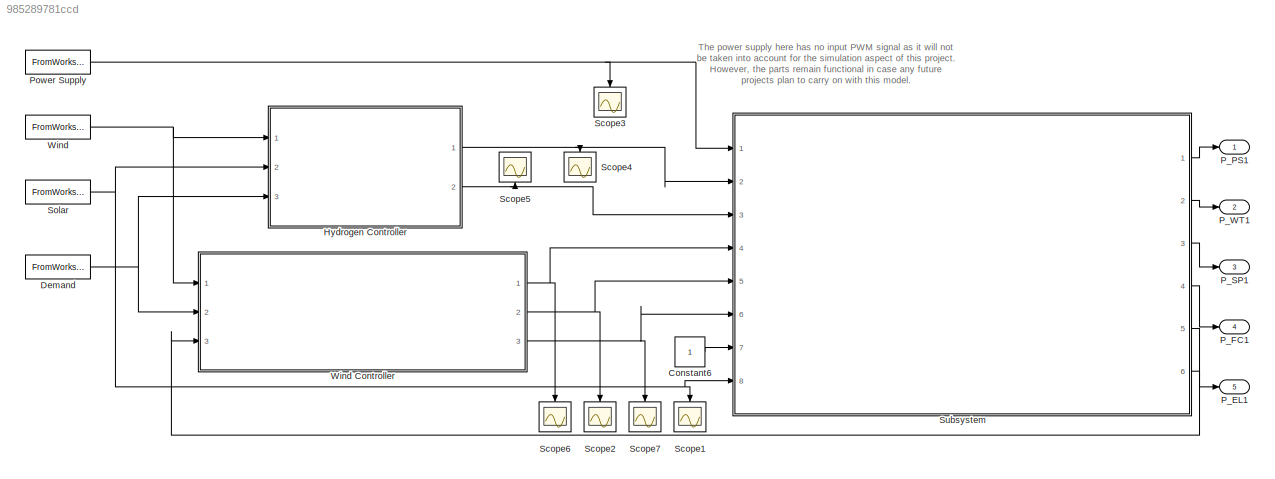
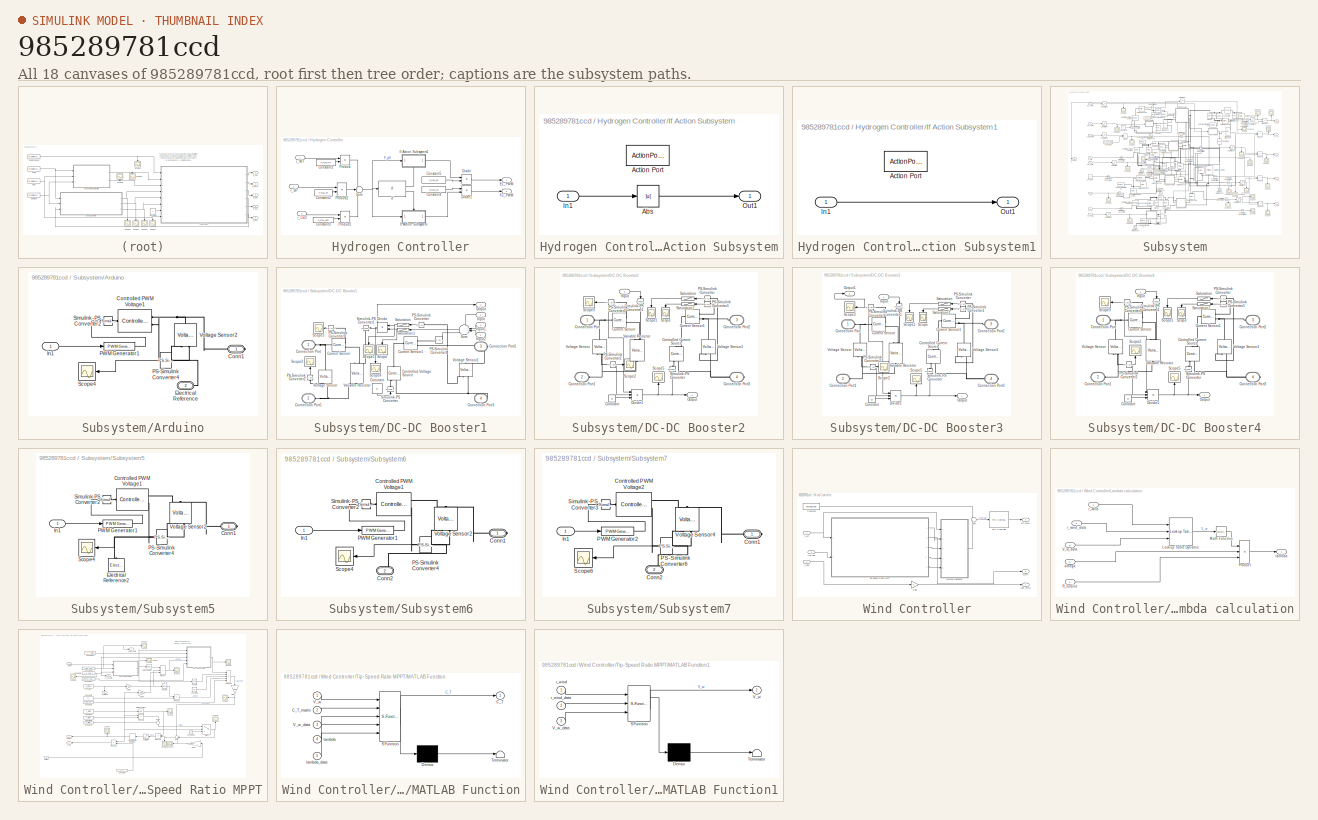
[diagram: thumbnail index - all 18 canvases of the model, root first then tree order]
MODEL slx_985289781ccd
KIND model
CONFIG AbsTol = auto
CONFIG EnableMultiTasking = off
CONFIG FixedStep = auto
CONFIG MaxStep = auto
CONFIG MinStep = auto
CONFIG RelTol = 1e-3
CONFIG SampleTimeConstraint = Unconstrained
CONFIG Solver = VariableStepAuto
CONFIG SolverName = VariableStepAuto
CONFIG StartTime = 0.0
CONFIG StopTime = T_sim
BLOCK [Constant] Constant6
BLOCK [FromWorkspace] Demand
  Interpolate = off
  OutputAfterFinalValue = Holding final value
  SampleTime = T_sim/length(r_LED_x)
  VariableName = r_LED
BLOCK [SubSystem] Hydrogen Controller
  Ports = [3, 2]
  RequestExecContextInheritance = off
BLOCK [Constant] Hydrogen Controller/Constant1
  Value = P_max_WT
BLOCK [Constant] Hydrogen Controller/Constant2
  Value = P_max_SP
BLOCK [Constant] Hydrogen Controller/Constant3
  Value = P_max_LED
BLOCK [Constant] Hydrogen Controller/Constant4
  Value = P_max_FC
BLOCK [Constant] Hydrogen Controller/Constant5
  Value = P_max_EL
BLOCK [Product] Hydrogen Controller/Divide
  Inputs = */
  Ports = [2, 1]
BLOCK [Product] Hydrogen Controller/Divide1
  Inputs = /*
  NameLocation = top
  Ports = [2, 1]
BLOCK [Outport] Hydrogen Controller/EL_PWM
BLOCK [Outport] Hydrogen Controller/FC_PWM
  Port = 2
BLOCK [If] Hydrogen Controller/If
  Ports = [1, 2]
BLOCK [SubSystem] Hydrogen Controller/If Action Subsystem
  Ports = [1, 1, 0, 0, 0, 0, 0, 1]
  RequestExecContextInheritance = off
  TreatAsAtomicUnit = on
BLOCK [Abs] Hydrogen Controller/If Action Subsystem/Abs
  SaturateOnIntegerOverflow = off
BLOCK [ActionPort] Hydrogen Controller/If Action Subsystem/Action Port
  ActionPortLabel = else
BLOCK [Inport] Hydrogen Controller/If Action Subsystem/In1
BLOCK [Outport] Hydrogen Controller/If Action Subsystem/Out1
BLOCK [SubSystem] Hydrogen Controller/If Action Subsystem1
  NameLocation = top
  Ports = [1, 1, 0, 0, 0, 0, 0, 1]
  RequestExecContextInheritance = off
  TreatAsAtomicUnit = on
BLOCK [ActionPort] Hydrogen Controller/If Action Subsystem1/Action Port
  ActionPortLabel = if(u1 > 0)
BLOCK [Inport] Hydrogen Controller/If Action Subsystem1/In1
BLOCK [Outport] Hydrogen Controller/If Action Subsystem1/Out1
BLOCK [Product] Hydrogen Controller/Product
  Ports = [2, 1]
BLOCK [Product] Hydrogen Controller/Product1
  Ports = [2, 1]
BLOCK [Product] Hydrogen Controller/Product2
  Ports = [2, 1]
BLOCK [Sum] Hydrogen Controller/Sum
  Inputs = ++-
  Ports = [3, 1]
BLOCK [Inport] Hydrogen Controller/r_LED
  Port = 3
BLOCK [Inport] Hydrogen Controller/r_SP
  Port = 2
BLOCK [Inport] Hydrogen Controller/r_WT
BLOCK [Outport] P_EL1
  Port = 5
BLOCK [Outport] P_FC1
  Port = 4
BLOCK [Outport] P_PS1
BLOCK [Outport] P_SP1
  Port = 3
BLOCK [Outport] P_WT1
  Port = 2
BLOCK [FromWorkspace] Power Supply
  Interpolate = off
  OutputAfterFinalValue = Holding final value
  SampleTime = T_sim/length(r_PS_x)
  VariableName = r_PS
BLOCK [Scope] Scope1
  Floating = off
  NameLocation = left
  NumInputPorts = 1
  Ports = [1]
  ScopeSpecificationString = Simulink.scopes.TimeScopeBlockCfg('CurrentConfiguration', extmgr.ConfigurationSet(extmgr.Configuration('Core','General UI',true),extmgr.Configuration('Core','Source UI',true),extmgr.Configuration('Sources','WiredSimulink',true,'DataLoggingVariableName','ScopeData13'),extmgr.Configuration('Visuals','Time Domain',true,'SerializedDisplays',{struct('MinYLimReal','0.75','MaxYLimReal','0.95','YLabelReal...<+1339ch>
BLOCK [Scope] Scope2
  Floating = off
  NameLocation = left
  NumInputPorts = 1
  Ports = [1]
  ScopeSpecificationString = Simulink.scopes.TimeScopeBlockCfg('CurrentConfiguration', extmgr.ConfigurationSet(extmgr.Configuration('Core','General UI',true),extmgr.Configuration('Core','Source UI',true),extmgr.Configuration('Sources','WiredSimulink',true,'DataLoggingVariableName','ScopeData14'),extmgr.Configuration('Visuals','Time Domain',true,'SerializedDisplays',{struct('MinYLimReal','-36.40126','MaxYLimReal','632.94467','...<+1417ch>
BLOCK [Scope] Scope3
  Floating = off
  NameLocation = left
  NumInputPorts = 1
  Ports = [1]
  ScopeSpecificationString = Simulink.scopes.TimeScopeBlockCfg('CurrentConfiguration', extmgr.ConfigurationSet(extmgr.Configuration('Core','General UI',true),extmgr.Configuration('Core','Source UI',true),extmgr.Configuration('Sources','WiredSimulink',true,'DataLoggingVariableName','ScopeData1'),extmgr.Configuration('Visuals','Time Domain',true,'SerializedDisplays',{struct('MinYLimReal','-1.00000','MaxYLimReal','1.00000','YLab...<+1401ch>
BLOCK [Scope] Scope4
  Floating = off
  NameLocation = left
  NumInputPorts = 1
  Ports = [1]
  ScopeSpecificationString = Simulink.scopes.TimeScopeBlockCfg('CurrentConfiguration', extmgr.ConfigurationSet(extmgr.Configuration('Core','General UI',true),extmgr.Configuration('Core','Source UI',true),extmgr.Configuration('Sources','WiredSimulink',true,'DataLoggingVariableName','ScopeData2'),extmgr.Configuration('Visuals','Time Domain',true,'SerializedDisplays',{struct('MinYLimReal','-1.00000','MaxYLimReal','1.00000','YLab...<+1410ch>
BLOCK [Scope] Scope5
  Floating = off
  NameLocation = right
  NumInputPorts = 1
  Ports = [1]
  ScopeSpecificationString = Simulink.scopes.TimeScopeBlockCfg('CurrentConfiguration', extmgr.ConfigurationSet(extmgr.Configuration('Core','General UI',true),extmgr.Configuration('Core','Source UI',true),extmgr.Configuration('Sources','WiredSimulink',true,'DataLoggingVariableName','ScopeData3'),extmgr.Configuration('Visuals','Time Domain',true,'SerializedDisplays',{struct('MinYLimReal','5.392','MaxYLimReal','7.362','YLabelRea...<+1418ch>
BLOCK [Scope] Scope6
  Floating = off
  NameLocation = left
  NumInputPorts = 1
  Ports = [1]
  ScopeSpecificationString = Simulink.scopes.TimeScopeBlockCfg('CurrentConfiguration', extmgr.ConfigurationSet(extmgr.Configuration('Core','General UI',true),extmgr.Configuration('Core','Source UI',true),extmgr.Configuration('Sources','WiredSimulink',true,'DataLoggingVariableName','ScopeData4'),extmgr.Configuration('Visuals','Time Domain',true,'SerializedDisplays',{struct('MinYLimReal','0.775','MaxYLimReal','1.025','YLabelRea...<+1388ch>
BLOCK [Scope] Scope7
  Floating = off
  NameLocation = left
  NumInputPorts = 1
  Ports = [1]
  ScopeSpecificationString = Simulink.scopes.TimeScopeBlockCfg('CurrentConfiguration', extmgr.ConfigurationSet(extmgr.Configuration('Core','General UI',true),extmgr.Configuration('Core','Source UI',true),extmgr.Configuration('Sources','WiredSimulink',true,'DataLoggingVariableName','ScopeData5'),extmgr.Configuration('Visuals','Time Domain',true,'SerializedDisplays',{struct('MinYLimReal','1.41586','MaxYLimReal','7.97084','YLabe...<+1404ch>
BLOCK [FromWorkspace] Solar
  Interpolate = off
  OutputAfterFinalValue = Holding final value
  SampleTime = T_sim/length(r_SP_x)
  VariableName = r_SP
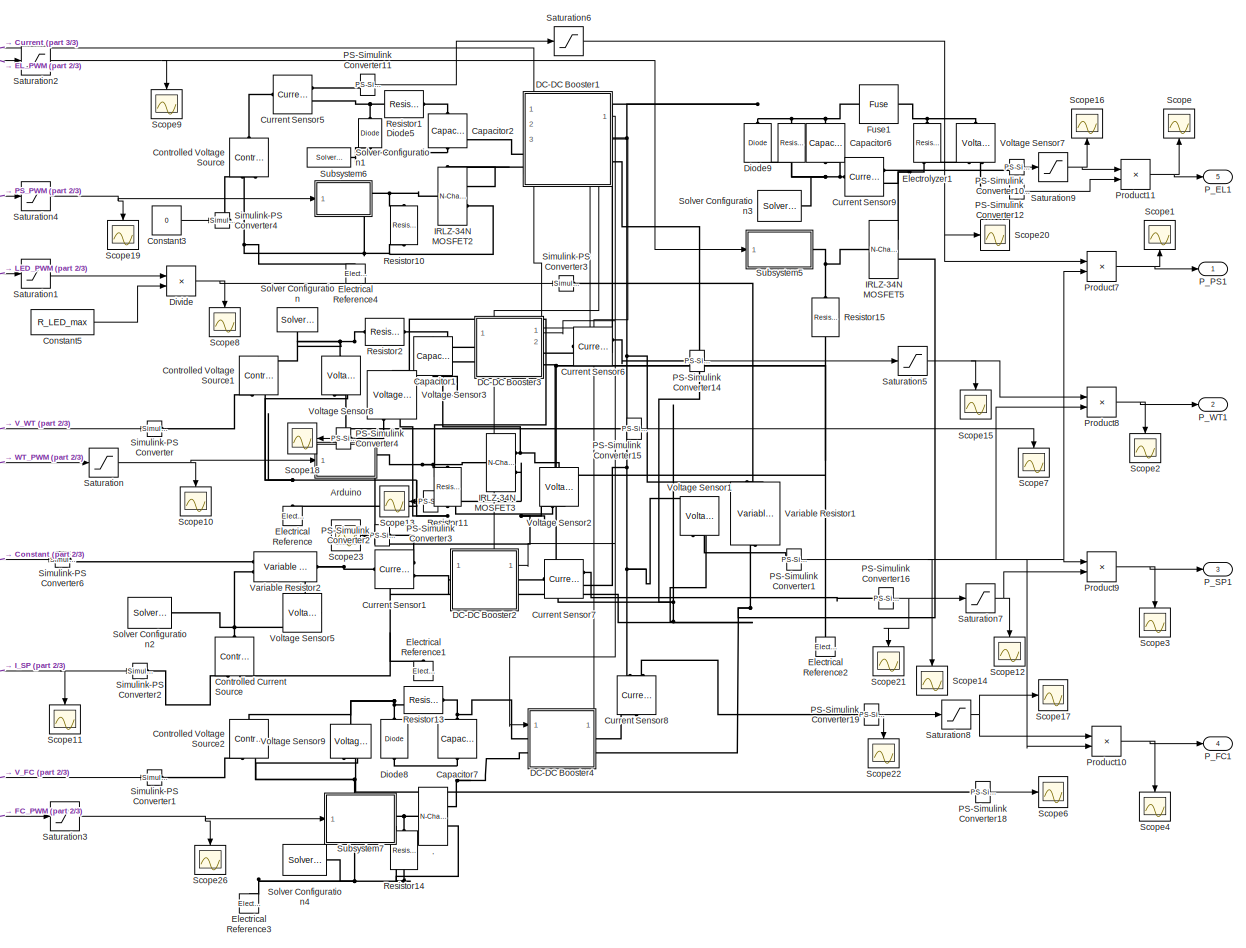
[diagram: Subsystem - part 1/3, most of the canvas]
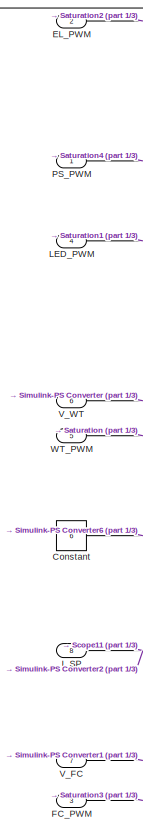
[diagram: Subsystem - part 2/3, left side, full height]
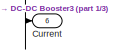
[diagram: Subsystem - part 3/3, middle left region]
BLOCK [SubSystem] Subsystem
  Ports = [8, 6]
  RequestExecContextInheritance = off
BLOCK [Reference] Subsystem/   REF=fl_lib/Electrical/Electrical Elements/Resistor
  NameLocation = left
  Ports = [0, 0, 0, 0, 0, 1, 1]
  SourceBlock = fl_lib/Electrical/Electrical Elements/Resistor
  SourceProductBaseCode = SS
  SourceType = Resistor
BLOCK [Reference] Subsystem/.  REF=ee_lib/Semiconductors &
Converters/N-Channel MOSFET
  Ports = [0, 0, 0, 0, 0, 1, 2]
  SourceBlock = ee_lib/Semiconductors &\nConverters/N-Channel MOSFET
  SourceProductBaseCode = PS
  SourceType = N-Channel MOSFET
BLOCK [SubSystem] Subsystem/Arduino
  Ports = [1, 0, 0, 0, 0, 0, 2]
  RequestExecContextInheritance = off
BLOCK [PMIOPort] Subsystem/Arduino/Conn1
  Side = Right
BLOCK [Reference] Subsystem/Arduino/Controlled PWM Voltage1  REF=ee_lib/Integrated Circuits/Controlled PWM
Voltage
  Ports = [0, 0, 0, 0, 0, 1, 2]
  SourceBlock = ee_lib/Integrated Circuits/Controlled PWM\nVoltage
  SourceProductBaseCode = PS
  SourceType = Controlled PWM\nVoltage
BLOCK [PMIOPort] Subsystem/Arduino/Electrical Reference
  Port = 2
  Side = Right
BLOCK [Inport] Subsystem/Arduino/In1
BLOCK [Reference] Subsystem/Arduino/PS-Simulink Converter4  REF=nesl_utility/PS-Simulink
Converter
  NameLocation = top
  Ports = [0, 1, 0, 0, 0, 1]
  SourceBlock = nesl_utility/PS-Simulink\nConverter
  SourceProductBaseCode = SS
  SourceType = PS-Simulink\nConverter
BLOCK [Reference] Subsystem/Arduino/PWM Generator1  REF=eePwmGenerator/PWM Generator
  Ports = [1, 1]
  SourceBlock = eePwmGenerator/PWM Generator
  SourceProductBaseCode = PS
  SourceType = PWM Generator
BLOCK [Scope] Subsystem/Arduino/Scope4
  Floating = off
  NumInputPorts = 1
  Ports = [1]
  ScopeSpecificationString = Simulink.scopes.TimeScopeBlockCfg('CurrentConfiguration', extmgr.ConfigurationSet(extmgr.Configuration('Core','General UI',true),extmgr.Configuration('Core','Source UI',true),extmgr.Configuration('Sources','WiredSimulink',true,'DataLoggingVariableName','ScopeData1'),extmgr.Configuration('Visuals','Time Domain',true,'SerializedDisplays',{struct('MinYLimReal','4.77465','MaxYLimReal','4.77476','YLabe...<+1434ch>
BLOCK [Reference] Subsystem/Arduino/Simulink-PS Converter2  REF=nesl_utility/Simulink-PS
Converter
  Ports = [1, 0, 0, 0, 0, 0, 1]
  SourceBlock = nesl_utility/Simulink-PS\nConverter
  SourceProductBaseCode = SS
  SourceType = Simulink-PS\nConverter
BLOCK [Reference] Subsystem/Arduino/Voltage Sensor2  REF=fl_lib/Electrical/Electrical Sensors/Voltage Sensor
  NameLocation = right
  Ports = [0, 0, 0, 0, 0, 1, 2]
  SourceBlock = fl_lib/Electrical/Electrical Sensors/Voltage Sensor
  SourceProductBaseCode = SS
  SourceType = Voltage Sensor
BLOCK [Reference] Subsystem/Capacitor1  REF=fl_lib/Electrical/Electrical Elements/Capacitor
  NameLocation = left
  Ports = [0, 0, 0, 0, 0, 1, 1]
  SourceBlock = fl_lib/Electrical/Electrical Elements/Capacitor
  SourceProductBaseCode = SS
  SourceType = Capacitor
BLOCK [Reference] Subsystem/Capacitor2  REF=fl_lib/Electrical/Electrical Elements/Capacitor
  NameLocation = left
  Ports = [0, 0, 0, 0, 0, 1, 1]
  SourceBlock = fl_lib/Electrical/Electrical Elements/Capacitor
  SourceProductBaseCode = SS
  SourceType = Capacitor
BLOCK [Reference] Subsystem/Capacitor6  REF=fl_lib/Electrical/Electrical Elements/Capacitor
  NameLocation = left
  Ports = [0, 0, 0, 0, 0, 1, 1]
  SourceBlock = fl_lib/Electrical/Electrical Elements/Capacitor
  SourceProductBaseCode = SS
  SourceType = Capacitor
BLOCK [Reference] Subsystem/Capacitor7  REF=fl_lib/Electrical/Electrical Elements/Capacitor
  NameLocation = left
  Ports = [0, 0, 0, 0, 0, 1, 1]
  SourceBlock = fl_lib/Electrical/Electrical Elements/Capacitor
  SourceProductBaseCode = SS
  SourceType = Capacitor
BLOCK [Constant] Subsystem/Constant
  Value = 6
BLOCK [Constant] Subsystem/Constant3
  Value = 0
BLOCK [Constant] Subsystem/Constant5
  Value = R_LED_max
BLOCK [Reference] Subsystem/Controlled Current Source  REF=fl_lib/Electrical/Electrical Sources/Controlled Current
Source
  NameLocation = right
  Ports = [0, 0, 0, 0, 0, 1, 2]
  SourceBlock = fl_lib/Electrical/Electrical Sources/Controlled Current\nSource
  SourceProductBaseCode = SS
  SourceType = Controlled Current\nSource
BLOCK [Reference] Subsystem/Controlled Voltage Source  REF=fl_lib/Electrical/Electrical Sources/Controlled Voltage
Source
  NameLocation = right
  Ports = [0, 0, 0, 0, 0, 1, 2]
  SourceBlock = fl_lib/Electrical/Electrical Sources/Controlled Voltage\nSource
  SourceProductBaseCode = SS
  SourceType = Controlled Voltage\nSource
BLOCK [Reference] Subsystem/Controlled Voltage Source1  REF=fl_lib/Electrical/Electrical Sources/Controlled Voltage
Source
  NameLocation = right
  Ports = [0, 0, 0, 0, 0, 1, 2]
  SourceBlock = fl_lib/Electrical/Electrical Sources/Controlled Voltage\nSource
  SourceProductBaseCode = SS
  SourceType = Controlled Voltage\nSource
BLOCK [Reference] Subsystem/Controlled Voltage Source2  REF=fl_lib/Electrical/Electrical Sources/Controlled Voltage
Source
  NameLocation = right
  Ports = [0, 0, 0, 0, 0, 1, 2]
  SourceBlock = fl_lib/Electrical/Electrical Sources/Controlled Voltage\nSource
  SourceProductBaseCode = SS
  SourceType = Controlled Voltage\nSource
BLOCK [Outport] Subsystem/Current
  Port = 6
BLOCK [Reference] Subsystem/Current Sensor1  REF=fl_lib/Electrical/Electrical Sensors/Current Sensor
  Ports = [0, 0, 0, 0, 0, 1, 2]
  SourceBlock = fl_lib/Electrical/Electrical Sensors/Current Sensor
  SourceProductBaseCode = SS
  SourceType = Current Sensor
BLOCK [Reference] Subsystem/Current Sensor5  REF=fl_lib/Electrical/Electrical Sensors/Current Sensor
  Ports = [0, 0, 0, 0, 0, 1, 2]
  SourceBlock = fl_lib/Electrical/Electrical Sensors/Current Sensor
  SourceProductBaseCode = SS
  SourceType = Current Sensor
BLOCK [Reference] Subsystem/Current Sensor6  REF=fl_lib/Electrical/Electrical Sensors/Current Sensor
  Ports = [0, 0, 0, 0, 0, 1, 2]
  SourceBlock = fl_lib/Electrical/Electrical Sensors/Current Sensor
  SourceProductBaseCode = SS
  SourceType = Current Sensor
BLOCK [Reference] Subsystem/Current Sensor7  REF=fl_lib/Electrical/Electrical Sensors/Current Sensor
  Ports = [0, 0, 0, 0, 0, 1, 2]
  SourceBlock = fl_lib/Electrical/Electrical Sensors/Current Sensor
  SourceProductBaseCode = SS
  SourceType = Current Sensor
BLOCK [Reference] Subsystem/Current Sensor8  REF=fl_lib/Electrical/Electrical Sensors/Current Sensor
  NameLocation = right
  Ports = [0, 0, 0, 0, 0, 1, 2]
  SourceBlock = fl_lib/Electrical/Electrical Sensors/Current Sensor
  SourceProductBaseCode = SS
  SourceType = Current Sensor
BLOCK [Reference] Subsystem/Current Sensor9  REF=fl_lib/Electrical/Electrical Sensors/Current Sensor
  Ports = [0, 0, 0, 0, 0, 1, 2]
  SourceBlock = fl_lib/Electrical/Electrical Sensors/Current Sensor
  SourceProductBaseCode = SS
  SourceType = Current Sensor
BLOCK [SubSystem] Subsystem/DC-DC Booster1
  PortSchema = {"entries":[{"content":{"sides":[{"content":{"connectorIds":["LConn1","LConn2"]},"type":"ConnectorPlacement.EquallySpacedRectSide","uuid":"3f87025d-e72c-4f7c-9c78-5492fcc5bb7b"},{"content":{"connectorIds":["Out1","RConn1","RConn2"],"side":"RIGHT"},"type":"ConnectorPlacement.EquallySpacedRectSide","uuid":"8496db32-d1b8-4ca7-babe-2510a055e486"},{"content":{"connectorIds":[],"side":"TOP"},"type":"Con...<+433ch>
  Ports = [3, 1, 0, 0, 0, 2, 2]
  RequestExecContextInheritance = off
BLOCK [PMIOPort] Subsystem/DC-DC Booster1/Connection Port
  Side = Left
  Tag = PMCPort
BLOCK [PMIOPort] Subsystem/DC-DC Booster1/Connection Port1
  Port = 2
  Side = Left
  Tag = PMCPort
BLOCK [PMIOPort] Subsystem/DC-DC Booster1/Connection Port2
  Port = 3
  Side = Right
  Tag = PMCPort
BLOCK [PMIOPort] Subsystem/DC-DC Booster1/Connection Port3
  Port = 4
  Side = Right
  Tag = PMCPort
BLOCK [Constant] Subsystem/DC-DC Booster1/Constant
  NameLocation = left
  Value = 12
BLOCK [Reference] Subsystem/DC-DC Booster1/Controlled Voltage Source  REF=fl_lib/Electrical/Electrical Sources/Controlled Voltage
Source
  NameLocation = right
  Ports = [0, 0, 0, 0, 0, 1, 2]
  SourceBlock = fl_lib/Electrical/Electrical Sources/Controlled Voltage\nSource
  SourceProductBaseCode = SS
  SourceType = Controlled Voltage\nSource
BLOCK [Reference] Subsystem/DC-DC Booster1/Current Sensor  REF=fl_lib/Electrical/Electrical Sensors/Current Sensor
  Ports = [0, 0, 0, 0, 0, 1, 2]
  SourceBlock = fl_lib/Electrical/Electrical Sensors/Current Sensor
  SourceProductBaseCode = SS
  SourceType = Current Sensor
BLOCK [Reference] Subsystem/DC-DC Booster1/Current Sensor1  REF=fl_lib/Electrical/Electrical Sensors/Current Sensor
  Ports = [0, 0, 0, 0, 0, 1, 2]
  SourceBlock = fl_lib/Electrical/Electrical Sensors/Current Sensor
  SourceProductBaseCode = SS
  SourceType = Current Sensor
BLOCK [Product] Subsystem/DC-DC Booster1/Divide
  Inputs = */
  Ports = [2, 1]
BLOCK [Inport] Subsystem/DC-DC Booster1/Input
BLOCK [Inport] Subsystem/DC-DC Booster1/Input1
  Port = 3
BLOCK [Inport] Subsystem/DC-DC Booster1/Input2
  Port = 2
BLOCK [Outport] Subsystem/DC-DC Booster1/Output
BLOCK [Reference] Subsystem/DC-DC Booster1/PS-Simulink Converter  REF=nesl_utility/PS-Simulink
Converter
  Ports = [0, 1, 0, 0, 0, 1]
  SourceBlock = nesl_utility/PS-Simulink\nConverter
  SourceProductBaseCode = SS
  SourceType = PS-Simulink\nConverter
BLOCK [Reference] Subsystem/DC-DC Booster1/PS-Simulink Converter1  REF=nesl_utility/PS-Simulink
Converter
  Ports = [0, 1, 0, 0, 0, 1]
  SourceBlock = nesl_utility/PS-Simulink\nConverter
  SourceProductBaseCode = SS
  SourceType = PS-Simulink\nConverter
BLOCK [Reference] Subsystem/DC-DC Booster1/PS-Simulink Converter2  REF=nesl_utility/PS-Simulink
Converter
  NameLocation = left
  Ports = [0, 1, 0, 0, 0, 1]
  SourceBlock = nesl_utility/PS-Simulink\nConverter
  SourceProductBaseCode = SS
  SourceType = PS-Simulink\nConverter
BLOCK [Reference] Subsystem/DC-DC Booster1/PS-Simulink Converter3  REF=nesl_utility/PS-Simulink
Converter
  Ports = [0, 1, 0, 0, 0, 1]
  SourceBlock = nesl_utility/PS-Simulink\nConverter
  SourceProductBaseCode = SS
  SourceType = PS-Simulink\nConverter
BLOCK [Saturate] Subsystem/DC-DC Booster1/Saturation
  LowerLimit = 0
  UpperLimit = 13
BLOCK [Saturate] Subsystem/DC-DC Booster1/Saturation1
  LowerLimit = 0.01
  UpperLimit = 2
BLOCK [Scope] Subsystem/DC-DC Booster1/Scope
  Floating = off
  NameLocation = left
  NumInputPorts = 1
  Ports = [1]
  ScopeSpecificationString = Simulink.scopes.TimeScopeBlockCfg('CurrentConfiguration', extmgr.ConfigurationSet(extmgr.Configuration('Core','General UI',true),extmgr.Configuration('Core','Source UI',true),extmgr.Configuration('Sources','WiredSimulink',true,'DataLoggingVariableName','ScopeData1'),extmgr.Configuration('Visuals','Time Domain',true,'SerializedDisplays',{struct('MinYLimReal','0.05685','MaxYLimReal','2.21591','YLabe...<+1396ch>
BLOCK [Scope] Subsystem/DC-DC Booster1/Scope1
  Floating = off
  NameLocation = left
  NumInputPorts = 1
  Ports = [1]
  ScopeSpecificationString = Simulink.scopes.TimeScopeBlockCfg('CurrentConfiguration', extmgr.ConfigurationSet(extmgr.Configuration('Core','General UI',true),extmgr.Configuration('Core','Source UI',true),extmgr.Configuration('Sources','WiredSimulink',true,'DataLoggingVariableName','ScopeData2'),extmgr.Configuration('Visuals','Time Domain',true,'SerializedDisplays',{struct('MinYLimReal','2.00000','MaxYLimReal','22.00000','YLab...<+1401ch>
BLOCK [Scope] Subsystem/DC-DC Booster1/Scope2
  Floating = off
  NameLocation = left
  NumInputPorts = 1
  Ports = [1]
  ScopeSpecificationString = Simulink.scopes.TimeScopeBlockCfg('CurrentConfiguration', extmgr.ConfigurationSet(extmgr.Configuration('Core','General UI',true),extmgr.Configuration('Core','Source UI',true),extmgr.Configuration('Sources','WiredSimulink',true,'DataLoggingVariableName','ScopeData3'),extmgr.Configuration('Visuals','Time Domain',true,'SerializedDisplays',{struct('MinYLimReal','72.69692','MaxYLimReal','218.32738','YL...<+1391ch>
BLOCK [Scope] Subsystem/DC-DC Booster1/Scope3
  Floating = off
  NumInputPorts = 1
  Ports = [1]
  ScopeSpecificationString = Simulink.scopes.TimeScopeBlockCfg('CurrentConfiguration', extmgr.ConfigurationSet(extmgr.Configuration('Core','General UI',true),extmgr.Configuration('Core','Source UI',true),extmgr.Configuration('Sources','WiredSimulink',true,'DataLoggingVariableName','ScopeData4'),extmgr.Configuration('Visuals','Time Domain',true,'SerializedDisplays',{struct('MinYLimReal','-94026819050944885641864298284086300507...<+2319ch>
BLOCK [Scope] Subsystem/DC-DC Booster1/Scope4
  Floating = off
  NameLocation = left
  NumInputPorts = 1
  Ports = [1]
  ScopeSpecificationString = Simulink.scopes.TimeScopeBlockCfg('CurrentConfiguration', extmgr.ConfigurationSet(extmgr.Configuration('Core','General UI',true),extmgr.Configuration('Core','Source UI',true),extmgr.Configuration('Sources','WiredSimulink',true,'DataLoggingVariableName','ScopeData5'),extmgr.Configuration('Visuals','Time Domain',true,'SerializedDisplays',{struct('MinYLimReal','1.7273','MaxYLimReal','44.45429','YLabe...<+1692ch>
BLOCK [Reference] Subsystem/DC-DC Booster1/Simulink-PS Converter  REF=nesl_utility/Simulink-PS
Converter
  NameLocation = right
  Ports = [1, 0, 0, 0, 0, 0, 1]
  SourceBlock = nesl_utility/Simulink-PS\nConverter
  SourceProductBaseCode = SS
  SourceType = Simulink-PS\nConverter
BLOCK [Reference] Subsystem/DC-DC Booster1/Simulink-PS Converter1  REF=nesl_utility/Simulink-PS
Converter
  Ports = [1, 0, 0, 0, 0, 0, 1]
  SourceBlock = nesl_utility/Simulink-PS\nConverter
  SourceProductBaseCode = SS
  SourceType = Simulink-PS\nConverter
BLOCK [Sum] Subsystem/DC-DC Booster1/Sum
  Inputs = ++++
  NameLocation = top
  Ports = [4, 1]
BLOCK [Reference] Subsystem/DC-DC Booster1/Variable Resistor  REF=fl_lib/Electrical/Electrical Elements/Variable Resistor
  NameLocation = left
  Ports = [0, 0, 0, 0, 0, 2, 1]
  SourceBlock = fl_lib/Electrical/Electrical Elements/Variable Resistor
  SourceProductBaseCode = SS
  SourceType = Variable Resistor
BLOCK [Reference] Subsystem/DC-DC Booster1/Voltage Sensor  REF=fl_lib/Electrical/Electrical Sensors/Voltage Sensor
  NameLocation = right
  Ports = [0, 0, 0, 0, 0, 1, 2]
  SourceBlock = fl_lib/Electrical/Electrical Sensors/Voltage Sensor
  SourceProductBaseCode = SS
  SourceType = Voltage Sensor
BLOCK [Reference] Subsystem/DC-DC Booster1/Voltage Sensor1  REF=fl_lib/Electrical/Electrical Sensors/Voltage Sensor
  NameLocation = right
  Ports = [0, 0, 0, 0, 0, 1, 2]
  SourceBlock = fl_lib/Electrical/Electrical Sensors/Voltage Sensor
  SourceProductBaseCode = SS
  SourceType = Voltage Sensor
BLOCK [SubSystem] Subsystem/DC-DC Booster2
  PortSchema = {"entries":[{"content":{"sides":[{"content":{"connectorIds":["LConn1","LConn2"]},"type":"ConnectorPlacement.EquallySpacedRectSide","uuid":"e779e15f-05fe-47ae-aa08-5379ba170b98"},{"content":{"connectorIds":["In1","RConn1","RConn2"],"side":"RIGHT"},"type":"ConnectorPlacement.EquallySpacedRectSide","uuid":"c806a98b-8847-4c98-ba30-df3a6a47e20e"},{"content":{"connectorIds":["Out1"],"side":"TOP"},"type"...<+277ch>
  Ports = [1, 1, 0, 0, 0, 2, 2]
  RequestExecContextInheritance = off
BLOCK [PMIOPort] Subsystem/DC-DC Booster2/Connection Port
  Side = Left
  Tag = PMCPort
BLOCK [PMIOPort] Subsystem/DC-DC Booster2/Connection Port1
  Port = 2
  Side = Left
  Tag = PMCPort
BLOCK [PMIOPort] Subsystem/DC-DC Booster2/Connection Port2
  Port = 3
  Side = Right
  Tag = PMCPort
BLOCK [PMIOPort] Subsystem/DC-DC Booster2/Connection Port3
  Port = 4
  Side = Right
  Tag = PMCPort
BLOCK [Constant] Subsystem/DC-DC Booster2/Constant
  Value = 12
BLOCK [Reference] Subsystem/DC-DC Booster2/Controlled Current Source  REF=fl_lib/Electrical/Electrical Sources/Controlled Current
Source
  NameLocation = right
  Ports = [0, 0, 0, 0, 0, 1, 2]
  SourceBlock = fl_lib/Electrical/Electrical Sources/Controlled Current\nSource
  SourceProductBaseCode = SS
  SourceType = Controlled Current\nSource
BLOCK [Reference] Subsystem/DC-DC Booster2/Current Sensor  REF=fl_lib/Electrical/Electrical Sensors/Current Sensor
  Ports = [0, 0, 0, 0, 0, 1, 2]
  SourceBlock = fl_lib/Electrical/Electrical Sensors/Current Sensor
  SourceProductBaseCode = SS
  SourceType = Current Sensor
BLOCK [Reference] Subsystem/DC-DC Booster2/Current Sensor1  REF=fl_lib/Electrical/Electrical Sensors/Current Sensor
  Ports = [0, 0, 0, 0, 0, 1, 2]
  SourceBlock = fl_lib/Electrical/Electrical Sensors/Current Sensor
  SourceProductBaseCode = SS
  SourceType = Current Sensor
BLOCK [Product] Subsystem/DC-DC Booster2/Divide1
  Inputs = **/
  Ports = [3, 1]
BLOCK [Inport] Subsystem/DC-DC Booster2/Input
BLOCK [Outport] Subsystem/DC-DC Booster2/Output
BLOCK [Reference] Subsystem/DC-DC Booster2/PS-Simulink Converter  REF=nesl_utility/PS-Simulink
Converter
  Ports = [0, 1, 0, 0, 0, 1]
  SourceBlock = nesl_utility/PS-Simulink\nConverter
  SourceProductBaseCode = SS
  SourceType = PS-Simulink\nConverter
BLOCK [Reference] Subsystem/DC-DC Booster2/PS-Simulink Converter1  REF=nesl_utility/PS-Simulink
Converter
  Ports = [0, 1, 0, 0, 0, 1]
  SourceBlock = nesl_utility/PS-Simulink\nConverter
  SourceProductBaseCode = SS
  SourceType = PS-Simulink\nConverter
BLOCK [Reference] Subsystem/DC-DC Booster2/PS-Simulink Converter2  REF=nesl_utility/PS-Simulink
Converter
  Ports = [0, 1, 0, 0, 0, 1]
  SourceBlock = nesl_utility/PS-Simulink\nConverter
  SourceProductBaseCode = SS
  SourceType = PS-Simulink\nConverter
BLOCK [Reference] Subsystem/DC-DC Booster2/PS-Simulink Converter3  REF=nesl_utility/PS-Simulink
Converter
  Ports = [0, 1, 0, 0, 0, 1]
  SourceBlock = nesl_utility/PS-Simulink\nConverter
  SourceProductBaseCode = SS
  SourceType = PS-Simulink\nConverter
BLOCK [Saturate] Subsystem/DC-DC Booster2/Saturation
  LowerLimit = 0
  UpperLimit = 13
BLOCK [Saturate] Subsystem/DC-DC Booster2/Saturation1
  LowerLimit = 0
  UpperLimit = 2
BLOCK [Scope] Subsystem/DC-DC Booster2/Scope
  Floating = off
  NameLocation = left
  NumInputPorts = 1
  Ports = [1]
  ScopeSpecificationString = Simulink.scopes.TimeScopeBlockCfg('CurrentConfiguration', extmgr.ConfigurationSet(extmgr.Configuration('Core','General UI',true),extmgr.Configuration('Core','Source UI',true),extmgr.Configuration('Sources','WiredSimulink',true,'DataLoggingVariableName','ScopeData1'),extmgr.Configuration('Visuals','Time Domain',true,'SerializedDisplays',{struct('MinYLimReal','0.29013','MaxYLimReal','2.18999','YLabe...<+1368ch>  <repeated x3 — deduplicated; at blocks: Scope>
BLOCK [Scope] Subsystem/DC-DC Booster2/Scope1
  Floating = off
  NameLocation = left
  NumInputPorts = 1
  Ports = [1]
  ScopeSpecificationString = Simulink.scopes.TimeScopeBlockCfg('CurrentConfiguration', extmgr.ConfigurationSet(extmgr.Configuration('Core','General UI',true),extmgr.Configuration('Core','Source UI',true),extmgr.Configuration('Sources','WiredSimulink',true,'DataLoggingVariableName','ScopeData2'),extmgr.Configuration('Visuals','Time Domain',true,'SerializedDisplays',{struct('MinYLimReal','2.00000','MaxYLimReal','22.00000','YLab...<+1400ch>  <repeated x3 — deduplicated; at blocks: Scope1>
BLOCK [Scope] Subsystem/DC-DC Booster2/Scope2
  Floating = off
  NumInputPorts = 1
  Ports = [1]
  ScopeSpecificationString = Simulink.scopes.TimeScopeBlockCfg('CurrentConfiguration', extmgr.ConfigurationSet(extmgr.Configuration('Core','General UI',true),extmgr.Configuration('Core','Source UI',true),extmgr.Configuration('Sources','WiredSimulink',true,'DataLoggingVariableName','ScopeData3'),extmgr.Configuration('Visuals','Time Domain',true,'SerializedDisplays',{struct('MinYLimReal','1.46821','MaxYLimReal','37.78614','YLab...<+1383ch>
BLOCK [Scope] Subsystem/DC-DC Booster2/Scope3
  Floating = off
  NumInputPorts = 1
  Ports = [1]
  ScopeSpecificationString = Simulink.scopes.TimeScopeBlockCfg('CurrentConfiguration', extmgr.ConfigurationSet(extmgr.Configuration('Core','General UI',true),extmgr.Configuration('Core','Source UI',true),extmgr.Configuration('Sources','WiredSimulink',true,'DataLoggingVariableName','ScopeData4'),extmgr.Configuration('Visuals','Time Domain',true,'SerializedDisplays',{struct('MinYLimReal','-94026819050944885641864298284086300507...<+2319ch>
BLOCK [Scope] Subsystem/DC-DC Booster2/Scope5
  Floating = off
  NameLocation = right
  NumInputPorts = 1
  Ports = [1]
  ScopeSpecificationString = Simulink.scopes.TimeScopeBlockCfg('CurrentConfiguration', extmgr.ConfigurationSet(extmgr.Configuration('Core','General UI',true),extmgr.Configuration('Core','Source UI',true),extmgr.Configuration('Sources','WiredSimulink',true,'DataLoggingVariableName','ScopeData2'),extmgr.Configuration('Visuals','Time Domain',true),extmgr.Configuration('Tools','Plot Navigation',true),extmgr.Configuration('Tools',...<+40ch>
BLOCK [Reference] Subsystem/DC-DC Booster2/Simulink-PS Converter  REF=nesl_utility/Simulink-PS
Converter
  NameLocation = right
  Ports = [1, 0, 0, 0, 0, 0, 1]
  SourceBlock = nesl_utility/Simulink-PS\nConverter
  SourceProductBaseCode = SS
  SourceType = Simulink-PS\nConverter
BLOCK [Reference] Subsystem/DC-DC Booster2/Simulink-PS Converter1  REF=nesl_utility/Simulink-PS
Converter
  NameLocation = right
  Ports = [1, 0, 0, 0, 0, 0, 1]
  SourceBlock = nesl_utility/Simulink-PS\nConverter
  SourceProductBaseCode = SS
  SourceType = Simulink-PS\nConverter
BLOCK [Reference] Subsystem/DC-DC Booster2/Variable Resistor  REF=fl_lib/Electrical/Electrical Elements/Variable Resistor
  NameLocation = left
  Ports = [0, 0, 0, 0, 0, 2, 1]
  SourceBlock = fl_lib/Electrical/Electrical Elements/Variable Resistor
  SourceProductBaseCode = SS
  SourceType = Variable Resistor
BLOCK [Reference] Subsystem/DC-DC Booster2/Voltage Sensor  REF=fl_lib/Electrical/Electrical Sensors/Voltage Sensor
  NameLocation = right
  Ports = [0, 0, 0, 0, 0, 1, 2]
  SourceBlock = fl_lib/Electrical/Electrical Sensors/Voltage Sensor
  SourceProductBaseCode = SS
  SourceType = Voltage Sensor
BLOCK [Reference] Subsystem/DC-DC Booster2/Voltage Sensor1  REF=fl_lib/Electrical/Electrical Sensors/Voltage Sensor
  NameLocation = right
  Ports = [0, 0, 0, 0, 0, 1, 2]
  SourceBlock = fl_lib/Electrical/Electrical Sensors/Voltage Sensor
  SourceProductBaseCode = SS
  SourceType = Voltage Sensor
BLOCK [SubSystem] Subsystem/DC-DC Booster3
  PortSchema = {"entries":[{"content":{"sides":[{"content":{"connectorIds":["LConn1","LConn2"]},"type":"ConnectorPlacement.EquallySpacedRectSide","uuid":"e779e15f-05fe-47ae-aa08-5379ba170b98"},{"content":{"connectorIds":["In1","RConn1","RConn2"],"side":"RIGHT"},"type":"ConnectorPlacement.EquallySpacedRectSide","uuid":"c806a98b-8847-4c98-ba30-df3a6a47e20e"},{"content":{"connectorIds":["Out1","Out2"],"side":"TOP"}...<+284ch>
  Ports = [1, 2, 0, 0, 0, 2, 2]
  RequestExecContextInheritance = off
BLOCK [PMIOPort] Subsystem/DC-DC Booster3/Connection Port
  Side = Left
  Tag = PMCPort
BLOCK [PMIOPort] Subsystem/DC-DC Booster3/Connection Port1
  Port = 2
  Side = Left
  Tag = PMCPort
BLOCK [PMIOPort] Subsystem/DC-DC Booster3/Connection Port2
  Port = 3
  Side = Right
  Tag = PMCPort
BLOCK [PMIOPort] Subsystem/DC-DC Booster3/Connection Port3
  Port = 4
  Side = Right
  Tag = PMCPort
BLOCK [Constant] Subsystem/DC-DC Booster3/Constant
  Value = 12
BLOCK [Reference] Subsystem/DC-DC Booster3/Controlled Current Source  REF=fl_lib/Electrical/Electrical Sources/Controlled Current
Source
  NameLocation = right
  Ports = [0, 0, 0, 0, 0, 1, 2]
  SourceBlock = fl_lib/Electrical/Electrical Sources/Controlled Current\nSource
  SourceProductBaseCode = SS
  SourceType = Controlled Current\nSource
BLOCK [Reference] Subsystem/DC-DC Booster3/Current Sensor  REF=fl_lib/Electrical/Electrical Sensors/Current Sensor
  Ports = [0, 0, 0, 0, 0, 1, 2]
  SourceBlock = fl_lib/Electrical/Electrical Sensors/Current Sensor
  SourceProductBaseCode = SS
  SourceType = Current Sensor
BLOCK [Reference] Subsystem/DC-DC Booster3/Current Sensor1  REF=fl_lib/Electrical/Electrical Sensors/Current Sensor
  Ports = [0, 0, 0, 0, 0, 1, 2]
  SourceBlock = fl_lib/Electrical/Electrical Sensors/Current Sensor
  SourceProductBaseCode = SS
  SourceType = Current Sensor
BLOCK [Product] Subsystem/DC-DC Booster3/Divide1
  Inputs = **/
  Ports = [3, 1]
BLOCK [Inport] Subsystem/DC-DC Booster3/Input
BLOCK [Outport] Subsystem/DC-DC Booster3/Output
BLOCK [Outport] Subsystem/DC-DC Booster3/Output1
  Port = 2
BLOCK [Reference] Subsystem/DC-DC Booster3/PS-Simulink Converter  REF=nesl_utility/PS-Simulink
Converter
  Ports = [0, 1, 0, 0, 0, 1]
  SourceBlock = nesl_utility/PS-Simulink\nConverter
  SourceProductBaseCode = SS
  SourceType = PS-Simulink\nConverter
BLOCK [Reference] Subsystem/DC-DC Booster3/PS-Simulink Converter1  REF=nesl_utility/PS-Simulink
Converter
  Ports = [0, 1, 0, 0, 0, 1]
  SourceBlock = nesl_utility/PS-Simulink\nConverter
  SourceProductBaseCode = SS
  SourceType = PS-Simulink\nConverter
BLOCK [Reference] Subsystem/DC-DC Booster3/PS-Simulink Converter2  REF=nesl_utility/PS-Simulink
Converter
  Ports = [0, 1, 0, 0, 0, 1]
  SourceBlock = nesl_utility/PS-Simulink\nConverter
  SourceProductBaseCode = SS
  SourceType = PS-Simulink\nConverter
BLOCK [Reference] Subsystem/DC-DC Booster3/PS-Simulink Converter3  REF=nesl_utility/PS-Simulink
Converter
  Ports = [0, 1, 0, 0, 0, 1]
  SourceBlock = nesl_utility/PS-Simulink\nConverter
  SourceProductBaseCode = SS
  SourceType = PS-Simulink\nConverter
BLOCK [Saturate] Subsystem/DC-DC Booster3/Saturation
  LowerLimit = 0
  UpperLimit = 13
BLOCK [Saturate] Subsystem/DC-DC Booster3/Saturation1
  LowerLimit = 0
  UpperLimit = 2
BLOCK [Scope] Subsystem/DC-DC Booster3/Scope
  Floating = off
  NameLocation = left
  NumInputPorts = 1
  Ports = [1]
BLOCK [Scope] Subsystem/DC-DC Booster3/Scope1
  Floating = off
  NameLocation = left
  NumInputPorts = 1
  Ports = [1]
BLOCK [Scope] Subsystem/DC-DC Booster3/Scope2
  Floating = off
  NumInputPorts = 1
  Ports = [1]
  ScopeSpecificationString = Simulink.scopes.TimeScopeBlockCfg('CurrentConfiguration', extmgr.ConfigurationSet(extmgr.Configuration('Core','General UI',true),extmgr.Configuration('Core','Source UI',true),extmgr.Configuration('Sources','WiredSimulink',true,'DataLoggingVariableName','ScopeData3'),extmgr.Configuration('Visuals','Time Domain',true,'SerializedDisplays',{struct('MinYLimReal','-0.50465','MaxYLimReal','4.51617','YLab...<+1716ch>
BLOCK [Scope] Subsystem/DC-DC Booster3/Scope3
  Floating = off
  NumInputPorts = 1
  Ports = [1]
  ScopeSpecificationString = Simulink.scopes.TimeScopeBlockCfg('CurrentConfiguration', extmgr.ConfigurationSet(extmgr.Configuration('Core','General UI',true),extmgr.Configuration('Core','Source UI',true),extmgr.Configuration('Sources','WiredSimulink',true,'DataLoggingVariableName','ScopeData4'),extmgr.Configuration('Visuals','Time Domain',true,'SerializedDisplays',{struct('MinYLimReal','-0.02189','MaxYLimReal','0.19273','YLab...<+1381ch>
BLOCK [Scope] Subsystem/DC-DC Booster3/Scope5
  Floating = off
  NameLocation = right
  NumInputPorts = 1
  Ports = [1]
  ScopeSpecificationString = Simulink.scopes.TimeScopeBlockCfg('CurrentConfiguration', extmgr.ConfigurationSet(extmgr.Configuration('Core','General UI',true),extmgr.Configuration('Core','Source UI',true),extmgr.Configuration('Sources','WiredSimulink',true,'DataLoggingVariableName','ScopeData2'),extmgr.Configuration('Visuals','Time Domain',true,'SerializedDisplays',{struct('MinYLimReal','-0.00716','MaxYLimReal','0.06447','YLab...<+1366ch>
BLOCK [Reference] Subsystem/DC-DC Booster3/Simulink-PS Converter  REF=nesl_utility/Simulink-PS
Converter
  NameLocation = right
  Ports = [1, 0, 0, 0, 0, 0, 1]
  SourceBlock = nesl_utility/Simulink-PS\nConverter
  SourceProductBaseCode = SS
  SourceType = Simulink-PS\nConverter
BLOCK [Reference] Subsystem/DC-DC Booster3/Simulink-PS Converter1  REF=nesl_utility/Simulink-PS
Converter
  NameLocation = right
  Ports = [1, 0, 0, 0, 0, 0, 1]
  SourceBlock = nesl_utility/Simulink-PS\nConverter
  SourceProductBaseCode = SS
  SourceType = Simulink-PS\nConverter
BLOCK [Reference] Subsystem/DC-DC Booster3/Variable Resistor  REF=fl_lib/Electrical/Electrical Elements/Variable Resistor
  NameLocation = left
  Ports = [0, 0, 0, 0, 0, 2, 1]
  SourceBlock = fl_lib/Electrical/Electrical Elements/Variable Resistor
  SourceProductBaseCode = SS
  SourceType = Variable Resistor
BLOCK [Reference] Subsystem/DC-DC Booster3/Voltage Sensor  REF=fl_lib/Electrical/Electrical Sensors/Voltage Sensor
  NameLocation = right
  Ports = [0, 0, 0, 0, 0, 1, 2]
  SourceBlock = fl_lib/Electrical/Electrical Sensors/Voltage Sensor
  SourceProductBaseCode = SS
  SourceType = Voltage Sensor
BLOCK [Reference] Subsystem/DC-DC Booster3/Voltage Sensor1  REF=fl_lib/Electrical/Electrical Sensors/Voltage Sensor
  NameLocation = right
  Ports = [0, 0, 0, 0, 0, 1, 2]
  SourceBlock = fl_lib/Electrical/Electrical Sensors/Voltage Sensor
  SourceProductBaseCode = SS
  SourceType = Voltage Sensor
BLOCK [SubSystem] Subsystem/DC-DC Booster4
  PortSchema = {"entries":[{"content":{"sides":[{"content":{"connectorIds":["In1","LConn1","LConn2"]},"type":"ConnectorPlacement.EquallySpacedRectSide","uuid":"53e27ef1-b6e4-4838-a313-2833a9f48f28"},{"content":{"connectorIds":["RConn1","RConn2"],"side":"RIGHT"},"type":"ConnectorPlacement.EquallySpacedRectSide","uuid":"d6eb4206-926e-4a9e-8f3b-898e00b2f09a"},{"content":{"connectorIds":["Out1"],"side":"TOP"},"type"...<+277ch>
  Ports = [1, 1, 0, 0, 0, 2, 2]
  RequestExecContextInheritance = off
BLOCK [PMIOPort] Subsystem/DC-DC Booster4/Connection Port
  Side = Left
  Tag = PMCPort
BLOCK [PMIOPort] Subsystem/DC-DC Booster4/Connection Port1
  Port = 2
  Side = Left
  Tag = PMCPort
BLOCK [PMIOPort] Subsystem/DC-DC Booster4/Connection Port2
  Port = 3
  Side = Right
  Tag = PMCPort
BLOCK [PMIOPort] Subsystem/DC-DC Booster4/Connection Port3
  Port = 4
  Side = Right
  Tag = PMCPort
BLOCK [Constant] Subsystem/DC-DC Booster4/Constant
  Value = 12
BLOCK [Reference] Subsystem/DC-DC Booster4/Controlled Current Source  REF=fl_lib/Electrical/Electrical Sources/Controlled Current
Source
  NameLocation = right
  Ports = [0, 0, 0, 0, 0, 1, 2]
  SourceBlock = fl_lib/Electrical/Electrical Sources/Controlled Current\nSource
  SourceProductBaseCode = SS
  SourceType = Controlled Current\nSource
BLOCK [Reference] Subsystem/DC-DC Booster4/Current Sensor  REF=fl_lib/Electrical/Electrical Sensors/Current Sensor
  Ports = [0, 0, 0, 0, 0, 1, 2]
  SourceBlock = fl_lib/Electrical/Electrical Sensors/Current Sensor
  SourceProductBaseCode = SS
  SourceType = Current Sensor
BLOCK [Reference] Subsystem/DC-DC Booster4/Current Sensor1  REF=fl_lib/Electrical/Electrical Sensors/Current Sensor
  Ports = [0, 0, 0, 0, 0, 1, 2]
  SourceBlock = fl_lib/Electrical/Electrical Sensors/Current Sensor
  SourceProductBaseCode = SS
  SourceType = Current Sensor
BLOCK [Product] Subsystem/DC-DC Booster4/Divide1
  Inputs = **/
  Ports = [3, 1]
BLOCK [Inport] Subsystem/DC-DC Booster4/Input
BLOCK [Outport] Subsystem/DC-DC Booster4/Output
BLOCK [Reference] Subsystem/DC-DC Booster4/PS-Simulink Converter  REF=nesl_utility/PS-Simulink
Converter
  Ports = [0, 1, 0, 0, 0, 1]
  SourceBlock = nesl_utility/PS-Simulink\nConverter
  SourceProductBaseCode = SS
  SourceType = PS-Simulink\nConverter
BLOCK [Reference] Subsystem/DC-DC Booster4/PS-Simulink Converter1  REF=nesl_utility/PS-Simulink
Converter
  Ports = [0, 1, 0, 0, 0, 1]
  SourceBlock = nesl_utility/PS-Simulink\nConverter
  SourceProductBaseCode = SS
  SourceType = PS-Simulink\nConverter
BLOCK [Reference] Subsystem/DC-DC Booster4/PS-Simulink Converter2  REF=nesl_utility/PS-Simulink
Converter
  Ports = [0, 1, 0, 0, 0, 1]
  SourceBlock = nesl_utility/PS-Simulink\nConverter
  SourceProductBaseCode = SS
  SourceType = PS-Simulink\nConverter
BLOCK [Reference] Subsystem/DC-DC Booster4/PS-Simulink Converter3  REF=nesl_utility/PS-Simulink
Converter
  Ports = [0, 1, 0, 0, 0, 1]
  SourceBlock = nesl_utility/PS-Simulink\nConverter
  SourceProductBaseCode = SS
  SourceType = PS-Simulink\nConverter
BLOCK [Saturate] Subsystem/DC-DC Booster4/Saturation
  LowerLimit = 0
  UpperLimit = 13
BLOCK [Saturate] Subsystem/DC-DC Booster4/Saturation1
  LowerLimit = 0
  UpperLimit = 2
BLOCK [Scope] Subsystem/DC-DC Booster4/Scope
  Floating = off
  NameLocation = left
  NumInputPorts = 1
  Ports = [1]
BLOCK [Scope] Subsystem/DC-DC Booster4/Scope1
  Floating = off
  NameLocation = left
  NumInputPorts = 1
  Ports = [1]
BLOCK [Scope] Subsystem/DC-DC Booster4/Scope2
  Floating = off
  NameLocation = right
  NumInputPorts = 1
  Ports = [1]
  ScopeSpecificationString = Simulink.scopes.TimeScopeBlockCfg('CurrentConfiguration', extmgr.ConfigurationSet(extmgr.Configuration('Core','General UI',true),extmgr.Configuration('Core','Source UI',true),extmgr.Configuration('Sources','WiredSimulink',true,'DataLoggingVariableName','ScopeData3'),extmgr.Configuration('Visuals','Time Domain',true,'SerializedDisplays',{struct('MinYLimReal','-0.06663','MaxYLimReal','0.56696','YLab...<+1381ch>
BLOCK [Scope] Subsystem/DC-DC Booster4/Scope3
  Floating = off
  NumInputPorts = 1
  Ports = [1]
  ScopeSpecificationString = Simulink.scopes.TimeScopeBlockCfg('CurrentConfiguration', extmgr.ConfigurationSet(extmgr.Configuration('Core','General UI',true),extmgr.Configuration('Core','Source UI',true),extmgr.Configuration('Sources','WiredSimulink',true,'DataLoggingVariableName','ScopeData4'),extmgr.Configuration('Visuals','Time Domain',true,'SerializedDisplays',{struct('MinYLimReal','-0.00453','MaxYLimReal','0.03529','YLab...<+1680ch>
BLOCK [Scope] Subsystem/DC-DC Booster4/Scope5
  Floating = off
  NameLocation = right
  NumInputPorts = 1
  Ports = [1]
  ScopeSpecificationString = Simulink.scopes.TimeScopeBlockCfg('CurrentConfiguration', extmgr.ConfigurationSet(extmgr.Configuration('Core','General UI',true),extmgr.Configuration('Core','Source UI',true),extmgr.Configuration('Sources','WiredSimulink',true,'DataLoggingVariableName','ScopeData2'),extmgr.Configuration('Visuals','Time Domain',true),extmgr.Configuration('Tools','Plot Navigation',true),extmgr.Configuration('Tools',...<+40ch>
BLOCK [Reference] Subsystem/DC-DC Booster4/Simulink-PS Converter  REF=nesl_utility/Simulink-PS
Converter
  NameLocation = right
  Ports = [1, 0, 0, 0, 0, 0, 1]
  SourceBlock = nesl_utility/Simulink-PS\nConverter
  SourceProductBaseCode = SS
  SourceType = Simulink-PS\nConverter
BLOCK [Reference] Subsystem/DC-DC Booster4/Simulink-PS Converter1  REF=nesl_utility/Simulink-PS
Converter
  NameLocation = right
  Ports = [1, 0, 0, 0, 0, 0, 1]
  SourceBlock = nesl_utility/Simulink-PS\nConverter
  SourceProductBaseCode = SS
  SourceType = Simulink-PS\nConverter
BLOCK [Reference] Subsystem/DC-DC Booster4/Variable Resistor  REF=fl_lib/Electrical/Electrical Elements/Variable Resistor
  NameLocation = left
  Ports = [0, 0, 0, 0, 0, 2, 1]
  SourceBlock = fl_lib/Electrical/Electrical Elements/Variable Resistor
  SourceProductBaseCode = SS
  SourceType = Variable Resistor
BLOCK [Reference] Subsystem/DC-DC Booster4/Voltage Sensor  REF=fl_lib/Electrical/Electrical Sensors/Voltage Sensor
  NameLocation = right
  Ports = [0, 0, 0, 0, 0, 1, 2]
  SourceBlock = fl_lib/Electrical/Electrical Sensors/Voltage Sensor
  SourceProductBaseCode = SS
  SourceType = Voltage Sensor
BLOCK [Reference] Subsystem/DC-DC Booster4/Voltage Sensor1  REF=fl_lib/Electrical/Electrical Sensors/Voltage Sensor
  NameLocation = right
  Ports = [0, 0, 0, 0, 0, 1, 2]
  SourceBlock = fl_lib/Electrical/Electrical Sensors/Voltage Sensor
  SourceProductBaseCode = SS
  SourceType = Voltage Sensor
BLOCK [Reference] Subsystem/Diode5  REF=ee_lib/Semiconductors &
Converters/Diode
  NameLocation = right
  Ports = [0, 0, 0, 0, 0, 1, 1]
  SourceBlock = ee_lib/Semiconductors &\nConverters/Diode
  SourceProductBaseCode = PS
  SourceType = Diode
BLOCK [Reference] Subsystem/Diode8  REF=ee_lib/Semiconductors &
Converters/Diode
  NameLocation = right
  Ports = [0, 0, 0, 0, 0, 1, 1]
  SourceBlock = ee_lib/Semiconductors &\nConverters/Diode
  SourceProductBaseCode = PS
  SourceType = Diode
BLOCK [Reference] Subsystem/Diode9  REF=ee_lib/Semiconductors &
Converters/Diode
  NameLocation = right
  Ports = [0, 0, 0, 0, 0, 1, 1]
  SourceBlock = ee_lib/Semiconductors &\nConverters/Diode
  SourceProductBaseCode = PS
  SourceType = Diode
BLOCK [Product] Subsystem/Divide
  Inputs = /*
  Ports = [2, 1]
BLOCK [Inport] Subsystem/EL_PWM
  Port = 2
BLOCK [Reference] Subsystem/Electrical Reference  REF=fl_lib/Electrical/Electrical Elements/Electrical Reference
  NameLocation = right
  Ports = [0, 0, 0, 0, 0, 1]
  SourceBlock = fl_lib/Electrical/Electrical Elements/Electrical Reference
  SourceProductBaseCode = SS
  SourceType = Electrical Reference
BLOCK [Reference] Subsystem/Electrical Reference1  REF=fl_lib/Electrical/Electrical Elements/Electrical Reference
  NameLocation = right
  Ports = [0, 0, 0, 0, 0, 1]
  SourceBlock = fl_lib/Electrical/Electrical Elements/Electrical Reference
  SourceProductBaseCode = SS
  SourceType = Electrical Reference
BLOCK [Reference] Subsystem/Electrical Reference2  REF=fl_lib/Electrical/Electrical Elements/Electrical Reference
  NameLocation = right
  Ports = [0, 0, 0, 0, 0, 1]
  SourceBlock = fl_lib/Electrical/Electrical Elements/Electrical Reference
  SourceProductBaseCode = SS
  SourceType = Electrical Reference
BLOCK [Reference] Subsystem/Electrical Reference3  REF=fl_lib/Electrical/Electrical Elements/Electrical Reference
  NameLocation = right
  Ports = [0, 0, 0, 0, 0, 1]
  SourceBlock = fl_lib/Electrical/Electrical Elements/Electrical Reference
  SourceProductBaseCode = SS
  SourceType = Electrical Reference
BLOCK [Reference] Subsystem/Electrical Reference4  REF=fl_lib/Electrical/Electrical Elements/Electrical Reference
  NameLocation = right
  Ports = [0, 0, 0, 0, 0, 1]
  SourceBlock = fl_lib/Electrical/Electrical Elements/Electrical Reference
  SourceProductBaseCode = SS
  SourceType = Electrical Reference
BLOCK [Reference] Subsystem/Electrolyzer1  REF=fl_lib/Electrical/Electrical Elements/Resistor
  NameLocation = left
  Ports = [0, 0, 0, 0, 0, 1, 1]
  SourceBlock = fl_lib/Electrical/Electrical Elements/Resistor
  SourceProductBaseCode = SS
  SourceType = Resistor
BLOCK [Inport] Subsystem/FC_PWM
  Port = 3
BLOCK [Reference] Subsystem/Fuse1  REF=ee_lib/Switches & Breakers/Fuse
  Ports = [0, 0, 0, 0, 0, 1, 1]
  SourceBlock = ee_lib/Switches & Breakers/Fuse
  SourceProductBaseCode = PS
  SourceType = Fuse
BLOCK [Reference] Subsystem/IRLZ-34N MOSFET2  REF=ee_lib/Semiconductors &
Converters/N-Channel MOSFET
  Ports = [0, 0, 0, 0, 0, 1, 2]
  SourceBlock = ee_lib/Semiconductors &\nConverters/N-Channel MOSFET
  SourceProductBaseCode = PS
  SourceType = N-Channel MOSFET
BLOCK [Reference] Subsystem/IRLZ-34N MOSFET3  REF=ee_lib/Semiconductors &
Converters/N-Channel MOSFET
  Ports = [0, 0, 0, 0, 0, 1, 2]
  SourceBlock = ee_lib/Semiconductors &\nConverters/N-Channel MOSFET
  SourceProductBaseCode = PS
  SourceType = N-Channel MOSFET
BLOCK [Reference] Subsystem/IRLZ-34N MOSFET5  REF=ee_lib/Semiconductors &
Converters/N-Channel MOSFET
  Ports = [0, 0, 0, 0, 0, 1, 2]
  SourceBlock = ee_lib/Semiconductors &\nConverters/N-Channel MOSFET
  SourceProductBaseCode = PS
  SourceType = N-Channel MOSFET
BLOCK [Inport] Subsystem/I_SP
  Port = 8
BLOCK [Inport] Subsystem/LED_PWM
  Port = 4
BLOCK [Reference] Subsystem/PS-Simulink Converter1  REF=nesl_utility/PS-Simulink
Converter
  Ports = [0, 1, 0, 0, 0, 1]
  SourceBlock = nesl_utility/PS-Simulink\nConverter
  SourceProductBaseCode = SS
  SourceType = PS-Simulink\nConverter
BLOCK [Reference] Subsystem/PS-Simulink Converter10  REF=nesl_utility/PS-Simulink
Converter
  Ports = [0, 1, 0, 0, 0, 1]
  SourceBlock = nesl_utility/PS-Simulink\nConverter
  SourceProductBaseCode = SS
  SourceType = PS-Simulink\nConverter
BLOCK [Reference] Subsystem/PS-Simulink Converter11  REF=nesl_utility/PS-Simulink
Converter
  Ports = [0, 1, 0, 0, 0, 1]
  SourceBlock = nesl_utility/PS-Simulink\nConverter
  SourceProductBaseCode = SS
  SourceType = PS-Simulink\nConverter
BLOCK [Reference] Subsystem/PS-Simulink Converter12  REF=nesl_utility/PS-Simulink
Converter
  Ports = [0, 1, 0, 0, 0, 1]
  SourceBlock = nesl_utility/PS-Simulink\nConverter
  SourceProductBaseCode = SS
  SourceType = PS-Simulink\nConverter
BLOCK [Reference] Subsystem/PS-Simulink Converter14  REF=nesl_utility/PS-Simulink
Converter
  Ports = [0, 1, 0, 0, 0, 1]
  SourceBlock = nesl_utility/PS-Simulink\nConverter
  SourceProductBaseCode = SS
  SourceType = PS-Simulink\nConverter
BLOCK [Reference] Subsystem/PS-Simulink Converter15  REF=nesl_utility/PS-Simulink
Converter
  Ports = [0, 1, 0, 0, 0, 1]
  SourceBlock = nesl_utility/PS-Simulink\nConverter
  SourceProductBaseCode = SS
  SourceType = PS-Simulink\nConverter
BLOCK [Reference] Subsystem/PS-Simulink Converter16  REF=nesl_utility/PS-Simulink
Converter
  Ports = [0, 1, 0, 0, 0, 1]
  SourceBlock = nesl_utility/PS-Simulink\nConverter
  SourceProductBaseCode = SS
  SourceType = PS-Simulink\nConverter
BLOCK [Reference] Subsystem/PS-Simulink Converter18  REF=nesl_utility/PS-Simulink
Converter
  Ports = [0, 1, 0, 0, 0, 1]
  SourceBlock = nesl_utility/PS-Simulink\nConverter
  SourceProductBaseCode = SS
  SourceType = PS-Simulink\nConverter
BLOCK [Reference] Subsystem/PS-Simulink Converter19  REF=nesl_utility/PS-Simulink
Converter
  Ports = [0, 1, 0, 0, 0, 1]
  SourceBlock = nesl_utility/PS-Simulink\nConverter
  SourceProductBaseCode = SS
  SourceType = PS-Simulink\nConverter
BLOCK [Reference] Subsystem/PS-Simulink Converter2  REF=nesl_utility/PS-Simulink
Converter
  Ports = [0, 1, 0, 0, 0, 1]
  SourceBlock = nesl_utility/PS-Simulink\nConverter
  SourceProductBaseCode = SS
  SourceType = PS-Simulink\nConverter
BLOCK [Reference] Subsystem/PS-Simulink Converter3  REF=nesl_utility/PS-Simulink
Converter
  Ports = [0, 1, 0, 0, 0, 1]
  SourceBlock = nesl_utility/PS-Simulink\nConverter
  SourceProductBaseCode = SS
  SourceType = PS-Simulink\nConverter
BLOCK [Reference] Subsystem/PS-Simulink Converter4  REF=nesl_utility/PS-Simulink
Converter
  Ports = [0, 1, 0, 0, 0, 1]
  SourceBlock = nesl_utility/PS-Simulink\nConverter
  SourceProductBaseCode = SS
  SourceType = PS-Simulink\nConverter
BLOCK [Inport] Subsystem/PS_PWM
BLOCK [Outport] Subsystem/P_EL1
  Port = 5
BLOCK [Outport] Subsystem/P_FC1
  Port = 4
BLOCK [Outport] Subsystem/P_PS1
BLOCK [Outport] Subsystem/P_SP1
  Port = 3
BLOCK [Outport] Subsystem/P_WT1
  Port = 2
BLOCK [Product] Subsystem/Product10
  Ports = [2, 1]
BLOCK [Product] Subsystem/Product11
  Ports = [2, 1]
BLOCK [Product] Subsystem/Product7
  Ports = [2, 1]
BLOCK [Product] Subsystem/Product8
  Ports = [2, 1]
BLOCK [Product] Subsystem/Product9
  Ports = [2, 1]
BLOCK [Reference] Subsystem/Resistor1  REF=fl_lib/Electrical/Electrical Elements/Resistor
  Ports = [0, 0, 0, 0, 0, 1, 1]
  SourceBlock = fl_lib/Electrical/Electrical Elements/Resistor
  SourceProductBaseCode = SS
  SourceType = Resistor
BLOCK [Reference] Subsystem/Resistor10  REF=fl_lib/Electrical/Electrical Elements/Resistor
  NameLocation = left
  Ports = [0, 0, 0, 0, 0, 1, 1]
  SourceBlock = fl_lib/Electrical/Electrical Elements/Resistor
  SourceProductBaseCode = SS
  SourceType = Resistor
BLOCK [Reference] Subsystem/Resistor11  REF=fl_lib/Electrical/Electrical Elements/Resistor
  NameLocation = left
  Ports = [0, 0, 0, 0, 0, 1, 1]
  SourceBlock = fl_lib/Electrical/Electrical Elements/Resistor
  SourceProductBaseCode = SS
  SourceType = Resistor
BLOCK [Reference] Subsystem/Resistor13  REF=fl_lib/Electrical/Electrical Elements/Resistor
  Ports = [0, 0, 0, 0, 0, 1, 1]
  SourceBlock = fl_lib/Electrical/Electrical Elements/Resistor
  SourceProductBaseCode = SS
  SourceType = Resistor
BLOCK [Reference] Subsystem/Resistor14  REF=fl_lib/Electrical/Electrical Elements/Resistor
  NameLocation = left
  Ports = [0, 0, 0, 0, 0, 1, 1]
  SourceBlock = fl_lib/Electrical/Electrical Elements/Resistor
  SourceProductBaseCode = SS
  SourceType = Resistor
BLOCK [Reference] Subsystem/Resistor15  REF=fl_lib/Electrical/Electrical Elements/Resistor
  NameLocation = left
  Ports = [0, 0, 0, 0, 0, 1, 1]
  SourceBlock = fl_lib/Electrical/Electrical Elements/Resistor
  SourceProductBaseCode = SS
  SourceType = Resistor
BLOCK [Reference] Subsystem/Resistor2  REF=fl_lib/Electrical/Electrical Elements/Resistor
  Ports = [0, 0, 0, 0, 0, 1, 1]
  SourceBlock = fl_lib/Electrical/Electrical Elements/Resistor
  SourceProductBaseCode = SS
  SourceType = Resistor
BLOCK [Saturate] Subsystem/Saturation
  LowerLimit = 0
  UpperLimit = 1
BLOCK [Saturate] Subsystem/Saturation1
  LowerLimit = 0
  UpperLimit = 1
BLOCK [Saturate] Subsystem/Saturation2
  LowerLimit = 0
  UpperLimit = 1
BLOCK [Saturate] Subsystem/Saturation3
  LowerLimit = 0
  UpperLimit = 1
BLOCK [Saturate] Subsystem/Saturation4
  LowerLimit = 0
  UpperLimit = 1
BLOCK [Saturate] Subsystem/Saturation5
  UpperLimit = 2
BLOCK [Saturate] Subsystem/Saturation6
  UpperLimit = 2
BLOCK [Saturate] Subsystem/Saturation7
  LowerLimit = 0
  UpperLimit = 1
BLOCK [Saturate] Subsystem/Saturation8
BLOCK [Saturate] Subsystem/Saturation9
  LowerLimit = 0
  UpperLimit = 2
BLOCK [Scope] Subsystem/Scope
  Floating = off
  NameLocation = right
  NumInputPorts = 1
  Ports = [1]
  ScopeSpecificationString = Simulink.scopes.TimeScopeBlockCfg('CurrentConfiguration', extmgr.ConfigurationSet(extmgr.Configuration('Core','General UI',true),extmgr.Configuration('Core','Source UI',true),extmgr.Configuration('Sources','WiredSimulink',true,'DataLoggingVariableName','ScopeData1'),extmgr.Configuration('Visuals','Time Domain',true,'SerializedDisplays',{struct('MinYLimReal','-2.84713','MaxYLimReal','25.62421','YLa...<+2016ch>
BLOCK [Scope] Subsystem/Scope1
  Floating = off
  NameLocation = right
  NumInputPorts = 1
  Ports = [1]
  ScopeSpecificationString = Simulink.scopes.TimeScopeBlockCfg('CurrentConfiguration', extmgr.ConfigurationSet(extmgr.Configuration('Core','General UI',true),extmgr.Configuration('Core','Source UI',true),extmgr.Configuration('Sources','WiredSimulink',true,'DataLoggingVariableName','ScopeData2'),extmgr.Configuration('Visuals','Time Domain',true,'SerializedDisplays',{struct('MinYLimReal','-2504.68312','MaxYLimReal','22531.32933...<+1393ch>
BLOCK [Scope] Subsystem/Scope10
  Floating = off
  NameLocation = left
  NumInputPorts = 1
  Ports = [1]
  ScopeSpecificationString = Simulink.scopes.TimeScopeBlockCfg('CurrentConfiguration', extmgr.ConfigurationSet(extmgr.Configuration('Core','General UI',true),extmgr.Configuration('Core','Source UI',true),extmgr.Configuration('Sources','WiredSimulink',true,'DataLoggingVariableName','ScopeData7'),extmgr.Configuration('Visuals','Time Domain',true,'SerializedDisplays',{struct('MinYLimReal','0.9','MaxYLimReal','1.1','YLabelReal','...<+1335ch>
BLOCK [Scope] Subsystem/Scope11
  Floating = off
  NameLocation = left
  NumInputPorts = 1
  Ports = [1]
  ScopeSpecificationString = Simulink.scopes.TimeScopeBlockCfg('CurrentConfiguration', extmgr.ConfigurationSet(extmgr.Configuration('Core','General UI',true),extmgr.Configuration('Core','Source UI',true),extmgr.Configuration('Sources','WiredSimulink',true,'DataLoggingVariableName','ScopeData8'),extmgr.Configuration('Visuals','Time Domain',true,'SerializedDisplays',{struct('MinYLimReal','0.75','MaxYLimReal','0.95','YLabelReal'...<+1337ch>
BLOCK [Scope] Subsystem/Scope12
  Floating = off
  NameLocation = left
  NumInputPorts = 1
  Ports = [1]
  ScopeSpecificationString = Simulink.scopes.TimeScopeBlockCfg('CurrentConfiguration', extmgr.ConfigurationSet(extmgr.Configuration('Core','General UI',true),extmgr.Configuration('Core','Source UI',true),extmgr.Configuration('Sources','WiredSimulink',true,'DataLoggingVariableName','ScopeData9'),extmgr.Configuration('Visuals','Time Domain',true,'SerializedDisplays',{struct('MinYLimReal','0.5','MaxYLimReal','5.34389','YLabelRea...<+1724ch>
BLOCK [Scope] Subsystem/Scope13
  Floating = off
  NumInputPorts = 1
  Ports = [1]
  ScopeSpecificationString = Simulink.scopes.TimeScopeBlockCfg('CurrentConfiguration', extmgr.ConfigurationSet(extmgr.Configuration('Core','General UI',true),extmgr.Configuration('Core','Source UI',true),extmgr.Configuration('Sources','WiredSimulink',true,'DataLoggingVariableName','ScopeData1'),extmgr.Configuration('Visuals','Time Domain',true,'SerializedDisplays',{struct('MinYLimReal','-0.55589','MaxYLimReal','5.02754','YLab...<+1381ch>
BLOCK [Scope] Subsystem/Scope14
  Floating = off
  NameLocation = left
  NumInputPorts = 1
  Ports = [1]
  ScopeSpecificationString = Simulink.scopes.TimeScopeBlockCfg('CurrentConfiguration', extmgr.ConfigurationSet(extmgr.Configuration('Core','General UI',true),extmgr.Configuration('Core','Source UI',true),extmgr.Configuration('Sources','WiredSimulink',true,'DataLoggingVariableName','ScopeData11'),extmgr.Configuration('Visuals','Time Domain',true,'SerializedDisplays',{struct('MinYLimReal','2.00000','MaxYLimReal','22.00000','YLa...<+1416ch>
BLOCK [Scope] Subsystem/Scope15
  Floating = off
  NameLocation = left
  NumInputPorts = 1
  Ports = [1]
  ScopeSpecificationString = Simulink.scopes.TimeScopeBlockCfg('CurrentConfiguration', extmgr.ConfigurationSet(extmgr.Configuration('Core','General UI',true),extmgr.Configuration('Core','Source UI',true),extmgr.Configuration('Sources','WiredSimulink',true,'DataLoggingVariableName','ScopeData1'),extmgr.Configuration('Visuals','Time Domain',true,'SerializedDisplays',{struct('MinYLimReal','-0.00716','MaxYLimReal','0.06445','YLab...<+1370ch>
BLOCK [Scope] Subsystem/Scope16
  Floating = off
  NameLocation = right
  NumInputPorts = 1
  Ports = [1]
  ScopeSpecificationString = Simulink.scopes.TimeScopeBlockCfg('CurrentConfiguration', extmgr.ConfigurationSet(extmgr.Configuration('Core','General UI',true),extmgr.Configuration('Core','Source UI',true),extmgr.Configuration('Sources','WiredSimulink',true,'DataLoggingVariableName','ScopeData2'),extmgr.Configuration('Visuals','Time Domain',true,'SerializedDisplays',{struct('MinYLimReal','-0.25','MaxYLimReal','2.25','YLabelReal...<+1352ch>
BLOCK [Scope] Subsystem/Scope17
  Floating = off
  NumInputPorts = 1
  Ports = [1]
  ScopeSpecificationString = Simulink.scopes.TimeScopeBlockCfg('CurrentConfiguration', extmgr.ConfigurationSet(extmgr.Configuration('Core','General UI',true),extmgr.Configuration('Core','Source UI',true),extmgr.Configuration('Sources','WiredSimulink',true,'DataLoggingVariableName','ScopeData3'),extmgr.Configuration('Visuals','Time Domain',true,'SerializedDisplays',{struct('MinYLimReal','1.6176','MaxYLimReal','8.16352','YLabel...<+1383ch>
BLOCK [Scope] Subsystem/Scope18
  Floating = off
  NumInputPorts = 1
  Ports = [1]
  ScopeSpecificationString = Simulink.scopes.TimeScopeBlockCfg('CurrentConfiguration', extmgr.ConfigurationSet(extmgr.Configuration('Core','General UI',true),extmgr.Configuration('Core','Source UI',true),extmgr.Configuration('Sources','WiredSimulink',true,'DataLoggingVariableName','ScopeData2'),extmgr.Configuration('Visuals','Time Domain',true,'SerializedDisplays',{struct('MinYLimReal','4.99962','MaxYLimReal','5.00034','YLabe...<+1398ch>
BLOCK [Scope] Subsystem/Scope19
  Floating = off
  NameLocation = left
  NumInputPorts = 1
  Ports = [1]
  ScopeSpecificationString = Simulink.scopes.TimeScopeBlockCfg('CurrentConfiguration', extmgr.ConfigurationSet(extmgr.Configuration('Core','General UI',true),extmgr.Configuration('Core','Source UI',true),extmgr.Configuration('Sources','WiredSimulink',true,'DataLoggingVariableName','ScopeData5'),extmgr.Configuration('Visuals','Time Domain',true,'SerializedDisplays',{struct('MinYLimReal','-1.00000','MaxYLimReal','1.00000','YLab...<+1399ch>
BLOCK [Scope] Subsystem/Scope2
  Floating = off
  NameLocation = left
  NumInputPorts = 1
  Ports = [1]
  ScopeSpecificationString = Simulink.scopes.TimeScopeBlockCfg('CurrentConfiguration', extmgr.ConfigurationSet(extmgr.Configuration('Core','General UI',true),extmgr.Configuration('Core','Source UI',true),extmgr.Configuration('Sources','WiredSimulink',true,'DataLoggingVariableName','ScopeData3'),extmgr.Configuration('Visuals','Time Domain',true,'SerializedDisplays',{struct('MinYLimReal','-0.08594','MaxYLimReal','0.77342','YLab...<+1396ch>
BLOCK [Scope] Subsystem/Scope20
  Floating = off
  NumInputPorts = 1
  Ports = [1]
  ScopeSpecificationString = Simulink.scopes.TimeScopeBlockCfg('CurrentConfiguration', extmgr.ConfigurationSet(extmgr.Configuration('Core','General UI',true),extmgr.Configuration('Core','Source UI',true),extmgr.Configuration('Sources','WiredSimulink',true,'DataLoggingVariableName','ScopeData6'),extmgr.Configuration('Visuals','Time Domain',true,'SerializedDisplays',{struct('MinYLimReal','-1.00000','MaxYLimReal','1.00000','YLab...<+1370ch>
BLOCK [Scope] Subsystem/Scope21
  Floating = off
  NameLocation = left
  NumInputPorts = 1
  Ports = [1]
  ScopeSpecificationString = Simulink.scopes.TimeScopeBlockCfg('CurrentConfiguration', extmgr.ConfigurationSet(extmgr.Configuration('Core','General UI',true),extmgr.Configuration('Core','Source UI',true),extmgr.Configuration('Sources','WiredSimulink',true,'DataLoggingVariableName','ScopeData7'),extmgr.Configuration('Visuals','Time Domain',true,'SerializedDisplays',{struct('MinYLimReal','-0.11983','MaxYLimReal','1.07849','YLab...<+1435ch>
BLOCK [Scope] Subsystem/Scope22
  Floating = off
  NameLocation = left
  NumInputPorts = 1
  Ports = [1]
  ScopeSpecificationString = Simulink.scopes.TimeScopeBlockCfg('CurrentConfiguration', extmgr.ConfigurationSet(extmgr.Configuration('Core','General UI',true),extmgr.Configuration('Core','Source UI',true),extmgr.Configuration('Sources','WiredSimulink',true,'DataLoggingVariableName','ScopeData8'),extmgr.Configuration('Visuals','Time Domain',true,'SerializedDisplays',{struct('MinYLimReal','-0.00016','MaxYLimReal','0.00146','YLab...<+1412ch>
BLOCK [Scope] Subsystem/Scope23
  Floating = off
  NumInputPorts = 1
  Ports = [1]
  ScopeSpecificationString = Simulink.scopes.TimeScopeBlockCfg('CurrentConfiguration', extmgr.ConfigurationSet(extmgr.Configuration('Core','General UI',true),extmgr.Configuration('Core','Source UI',true),extmgr.Configuration('Sources','WiredSimulink',true,'DataLoggingVariableName','ScopeData9'),extmgr.Configuration('Visuals','Time Domain',true,'SerializedDisplays',{struct('MinYLimReal','0.8499999999999993','MaxYLimReal','0.85...<+1463ch>
BLOCK [Scope] Subsystem/Scope26
  Floating = off
  NameLocation = left
  NumInputPorts = 1
  Ports = [1]
  ScopeSpecificationString = Simulink.scopes.TimeScopeBlockCfg('CurrentConfiguration', extmgr.ConfigurationSet(extmgr.Configuration('Core','General UI',true),extmgr.Configuration('Core','Source UI',true),extmgr.Configuration('Sources','WiredSimulink',true,'DataLoggingVariableName','ScopeData12'),extmgr.Configuration('Visuals','Time Domain',true,'SerializedDisplays',{struct('MinYLimReal','0.9','MaxYLimReal','1.1','YLabelReal',...<+1337ch>
BLOCK [Scope] Subsystem/Scope3
  Floating = off
  NameLocation = right
  NumInputPorts = 1
  Ports = [1]
  ScopeSpecificationString = Simulink.scopes.TimeScopeBlockCfg('CurrentConfiguration', extmgr.ConfigurationSet(extmgr.Configuration('Core','General UI',true),extmgr.Configuration('Core','Source UI',true),extmgr.Configuration('Sources','WiredSimulink',true,'DataLoggingVariableName','ScopeData4'),extmgr.Configuration('Visuals','Time Domain',true,'SerializedDisplays',{struct('MinYLimReal','-0.00001','MaxYLimReal','5.1','YLabelRe...<+1728ch>
BLOCK [Scope] Subsystem/Scope4
  Floating = off
  NameLocation = left
  NumInputPorts = 1
  Ports = [1]
  ScopeSpecificationString = Simulink.scopes.TimeScopeBlockCfg('CurrentConfiguration', extmgr.ConfigurationSet(extmgr.Configuration('Core','General UI',true),extmgr.Configuration('Core','Source UI',true),extmgr.Configuration('Sources','WiredSimulink',true,'DataLoggingVariableName','ScopeData5'),extmgr.Configuration('Visuals','Time Domain',true,'SerializedDisplays',{struct('MinYLimReal','-0.00016','MaxYLimReal','0.00146','YLab...<+1395ch>
BLOCK [Scope] Subsystem/Scope6
  Floating = off
  NumInputPorts = 1
  Ports = [1]
  ScopeSpecificationString = Simulink.scopes.TimeScopeBlockCfg('CurrentConfiguration', extmgr.ConfigurationSet(extmgr.Configuration('Core','General UI',true),extmgr.Configuration('Core','Source UI',true),extmgr.Configuration('Sources','WiredSimulink',true,'DataLoggingVariableName','ScopeData7'),extmgr.Configuration('Visuals','Time Domain',true,'SerializedDisplays',{struct('MinYLimReal','0.9','MaxYLimReal','1.1','YLabelReal','...<+1378ch>
BLOCK [Scope] Subsystem/Scope7
  Floating = off
  NameLocation = left
  NumInputPorts = 1
  Ports = [1]
  ScopeSpecificationString = Simulink.scopes.TimeScopeBlockCfg('CurrentConfiguration', extmgr.ConfigurationSet(extmgr.Configuration('Core','General UI',true),extmgr.Configuration('Core','Source UI',true),extmgr.Configuration('Sources','WiredSimulink',true,'DataLoggingVariableName','ScopeData8'),extmgr.Configuration('Visuals','Time Domain',true,'SerializedDisplays',{struct('MinYLimReal','1.52593','MaxYLimReal','7.34302','YLabe...<+1380ch>
BLOCK [Scope] Subsystem/Scope8
  Floating = off
  NameLocation = left
  NumInputPorts = 1
  Ports = [1]
  ScopeSpecificationString = Simulink.scopes.TimeScopeBlockCfg('CurrentConfiguration', extmgr.ConfigurationSet(extmgr.Configuration('Core','General UI',true),extmgr.Configuration('Core','Source UI',true),extmgr.Configuration('Sources','WiredSimulink',true,'DataLoggingVariableName','ScopeData9'),extmgr.Configuration('Visuals','Time Domain',true,'SerializedDisplays',{struct('MinYLimReal','18.16406','MaxYLimReal','24.02344','YLa...<+1400ch>
BLOCK [Scope] Subsystem/Scope9
  Floating = off
  NameLocation = left
  NumInputPorts = 1
  Ports = [1]
  ScopeSpecificationString = Simulink.scopes.TimeScopeBlockCfg('CurrentConfiguration', extmgr.ConfigurationSet(extmgr.Configuration('Core','General UI',true),extmgr.Configuration('Core','Source UI',true),extmgr.Configuration('Sources','WiredSimulink',true,'DataLoggingVariableName','ScopeData6'),extmgr.Configuration('Visuals','Time Domain',true,'SerializedDisplays',{struct('MinYLimReal','-1.00000','MaxYLimReal','1.00000','YLab...<+1370ch>
BLOCK [Reference] Subsystem/Simulink-PS Converter  REF=nesl_utility/Simulink-PS
Converter
  Ports = [1, 0, 0, 0, 0, 0, 1]
  SourceBlock = nesl_utility/Simulink-PS\nConverter
  SourceProductBaseCode = SS
  SourceType = Simulink-PS\nConverter
BLOCK [Reference] Subsystem/Simulink-PS Converter1  REF=nesl_utility/Simulink-PS
Converter
  Ports = [1, 0, 0, 0, 0, 0, 1]
  SourceBlock = nesl_utility/Simulink-PS\nConverter
  SourceProductBaseCode = SS
  SourceType = Simulink-PS\nConverter
BLOCK [Reference] Subsystem/Simulink-PS Converter2  REF=nesl_utility/Simulink-PS
Converter
  Ports = [1, 0, 0, 0, 0, 0, 1]
  SourceBlock = nesl_utility/Simulink-PS\nConverter
  SourceProductBaseCode = SS
  SourceType = Simulink-PS\nConverter
BLOCK [Reference] Subsystem/Simulink-PS Converter3  REF=nesl_utility/Simulink-PS
Converter
  Ports = [1, 0, 0, 0, 0, 0, 1]
  SourceBlock = nesl_utility/Simulink-PS\nConverter
  SourceProductBaseCode = SS
  SourceType = Simulink-PS\nConverter
BLOCK [Reference] Subsystem/Simulink-PS Converter4  REF=nesl_utility/Simulink-PS
Converter
  Ports = [1, 0, 0, 0, 0, 0, 1]
  SourceBlock = nesl_utility/Simulink-PS\nConverter
  SourceProductBaseCode = SS
  SourceType = Simulink-PS\nConverter
BLOCK [Reference] Subsystem/Simulink-PS Converter6  REF=nesl_utility/Simulink-PS
Converter
  Ports = [1, 0, 0, 0, 0, 0, 1]
  SourceBlock = nesl_utility/Simulink-PS\nConverter
  SourceProductBaseCode = SS
  SourceType = Simulink-PS\nConverter
BLOCK [Reference] Subsystem/Solver Configuration  REF=nesl_utility/Solver
Configuration
  NameLocation = left
  Ports = [0, 0, 0, 0, 0, 0, 1]
  SourceBlock = nesl_utility/Solver\nConfiguration
  SourceProductBaseCode = SS
  SourceType = Solver\nConfiguration
BLOCK [Reference] Subsystem/Solver Configuration1  REF=nesl_utility/Solver
Configuration
  NameLocation = top
  Ports = [0, 0, 0, 0, 0, 0, 1]
  SourceBlock = nesl_utility/Solver\nConfiguration
  SourceProductBaseCode = SS
  SourceType = Solver\nConfiguration
BLOCK [Reference] Subsystem/Solver Configuration2  REF=nesl_utility/Solver
Configuration
  Ports = [0, 0, 0, 0, 0, 0, 1]
  SourceBlock = nesl_utility/Solver\nConfiguration
  SourceProductBaseCode = SS
  SourceType = Solver\nConfiguration
BLOCK [Reference] Subsystem/Solver Configuration3  REF=nesl_utility/Solver
Configuration
  Ports = [0, 0, 0, 0, 0, 0, 1]
  SourceBlock = nesl_utility/Solver\nConfiguration
  SourceProductBaseCode = SS
  SourceType = Solver\nConfiguration
BLOCK [Reference] Subsystem/Solver Configuration4  REF=nesl_utility/Solver
Configuration
  Ports = [0, 0, 0, 0, 0, 0, 1]
  SourceBlock = nesl_utility/Solver\nConfiguration
  SourceProductBaseCode = SS
  SourceType = Solver\nConfiguration
BLOCK [SubSystem] Subsystem/Subsystem5
  Ports = [1, 0, 0, 0, 0, 0, 1]
  RequestExecContextInheritance = off
BLOCK [PMIOPort] Subsystem/Subsystem5/Conn1
  Side = Right
BLOCK [Reference] Subsystem/Subsystem5/Controlled PWM Voltage1  REF=ee_lib/Integrated Circuits/Controlled PWM
Voltage
  Ports = [0, 0, 0, 0, 0, 1, 2]
  SourceBlock = ee_lib/Integrated Circuits/Controlled PWM\nVoltage
  SourceProductBaseCode = PS
  SourceType = Controlled PWM\nVoltage
BLOCK [Reference] Subsystem/Subsystem5/Electrical Reference2  REF=fl_lib/Electrical/Electrical Elements/Electrical Reference
  NameLocation = right
  Ports = [0, 0, 0, 0, 0, 1]
  SourceBlock = fl_lib/Electrical/Electrical Elements/Electrical Reference
  SourceProductBaseCode = SS
  SourceType = Electrical Reference
BLOCK [Inport] Subsystem/Subsystem5/In1
BLOCK [Reference] Subsystem/Subsystem5/PS-Simulink Converter4  REF=nesl_utility/PS-Simulink
Converter
  NameLocation = top
  Ports = [0, 1, 0, 0, 0, 1]
  SourceBlock = nesl_utility/PS-Simulink\nConverter
  SourceProductBaseCode = SS
  SourceType = PS-Simulink\nConverter
BLOCK [Reference] Subsystem/Subsystem5/PWM Generator1  REF=eePwmGenerator/PWM Generator
  Ports = [1, 1]
  SourceBlock = eePwmGenerator/PWM Generator
  SourceProductBaseCode = PS
  SourceType = PWM Generator
BLOCK [Scope] Subsystem/Subsystem5/Scope4
  Floating = off
  NumInputPorts = 1
  Ports = [1]
  ScopeSpecificationString = Simulink.scopes.TimeScopeBlockCfg('CurrentConfiguration', extmgr.ConfigurationSet(extmgr.Configuration('Core','General UI',true),extmgr.Configuration('Core','Source UI',true),extmgr.Configuration('Sources','WiredSimulink',true,'DataLoggingVariableName','ScopeData1'),extmgr.Configuration('Visuals','Time Domain',true,'SerializedDisplays',{struct('MinYLimReal','4.77465','MaxYLimReal','4.77476','YLabe...<+1428ch>
BLOCK [Reference] Subsystem/Subsystem5/Simulink-PS Converter2  REF=nesl_utility/Simulink-PS
Converter
  Ports = [1, 0, 0, 0, 0, 0, 1]
  SourceBlock = nesl_utility/Simulink-PS\nConverter
  SourceProductBaseCode = SS
  SourceType = Simulink-PS\nConverter
BLOCK [Reference] Subsystem/Subsystem5/Voltage Sensor2  REF=fl_lib/Electrical/Electrical Sensors/Voltage Sensor
  NameLocation = right
  Ports = [0, 0, 0, 0, 0, 1, 2]
  SourceBlock = fl_lib/Electrical/Electrical Sensors/Voltage Sensor
  SourceProductBaseCode = SS
  SourceType = Voltage Sensor
BLOCK [SubSystem] Subsystem/Subsystem6
  Ports = [1, 0, 0, 0, 0, 0, 2]
  RequestExecContextInheritance = off
BLOCK [PMIOPort] Subsystem/Subsystem6/Conn1
  Side = Right
BLOCK [PMIOPort] Subsystem/Subsystem6/Conn2
  Port = 2
  Side = Right
BLOCK [Reference] Subsystem/Subsystem6/Controlled PWM Voltage1  REF=ee_lib/Integrated Circuits/Controlled PWM
Voltage
  Ports = [0, 0, 0, 0, 0, 1, 2]
  SourceBlock = ee_lib/Integrated Circuits/Controlled PWM\nVoltage
  SourceProductBaseCode = PS
  SourceType = Controlled PWM\nVoltage
BLOCK [Inport] Subsystem/Subsystem6/In1
BLOCK [Reference] Subsystem/Subsystem6/PS-Simulink Converter4  REF=nesl_utility/PS-Simulink
Converter
  NameLocation = top
  Ports = [0, 1, 0, 0, 0, 1]
  SourceBlock = nesl_utility/PS-Simulink\nConverter
  SourceProductBaseCode = SS
  SourceType = PS-Simulink\nConverter
BLOCK [Reference] Subsystem/Subsystem6/PWM Generator1  REF=eePwmGenerator/PWM Generator
  Ports = [1, 1]
  SourceBlock = eePwmGenerator/PWM Generator
  SourceProductBaseCode = PS
  SourceType = PWM Generator
BLOCK [Scope] Subsystem/Subsystem6/Scope4
  Floating = off
  NumInputPorts = 1
  Ports = [1]
  ScopeSpecificationString = Simulink.scopes.TimeScopeBlockCfg('CurrentConfiguration', extmgr.ConfigurationSet(extmgr.Configuration('Core','General UI',true),extmgr.Configuration('Core','Source UI',true),extmgr.Configuration('Sources','WiredSimulink',true,'DataLoggingVariableName','ScopeData1'),extmgr.Configuration('Visuals','Time Domain',true,'SerializedDisplays',{struct('MinYLimReal','4.77465','MaxYLimReal','4.77476','YLabe...<+1428ch>
BLOCK [Reference] Subsystem/Subsystem6/Simulink-PS Converter2  REF=nesl_utility/Simulink-PS
Converter
  Ports = [1, 0, 0, 0, 0, 0, 1]
  SourceBlock = nesl_utility/Simulink-PS\nConverter
  SourceProductBaseCode = SS
  SourceType = Simulink-PS\nConverter
BLOCK [Reference] Subsystem/Subsystem6/Voltage Sensor2  REF=fl_lib/Electrical/Electrical Sensors/Voltage Sensor
  NameLocation = right
  Ports = [0, 0, 0, 0, 0, 1, 2]
  SourceBlock = fl_lib/Electrical/Electrical Sensors/Voltage Sensor
  SourceProductBaseCode = SS
  SourceType = Voltage Sensor
BLOCK [SubSystem] Subsystem/Subsystem7
  Ports = [1, 0, 0, 0, 0, 0, 2]
  RequestExecContextInheritance = off
BLOCK [PMIOPort] Subsystem/Subsystem7/Conn1
  Side = Right
BLOCK [PMIOPort] Subsystem/Subsystem7/Conn2
  Port = 2
  Side = Right
BLOCK [Reference] Subsystem/Subsystem7/Controlled PWM Voltage2  REF=ee_lib/Integrated Circuits/Controlled PWM
Voltage
  Ports = [0, 0, 0, 0, 0, 1, 2]
  SourceBlock = ee_lib/Integrated Circuits/Controlled PWM\nVoltage
  SourceProductBaseCode = PS
  SourceType = Controlled PWM\nVoltage
BLOCK [Inport] Subsystem/Subsystem7/In1
BLOCK [Reference] Subsystem/Subsystem7/PS-Simulink Converter6  REF=nesl_utility/PS-Simulink
Converter
  NameLocation = top
  Ports = [0, 1, 0, 0, 0, 1]
  SourceBlock = nesl_utility/PS-Simulink\nConverter
  SourceProductBaseCode = SS
  SourceType = PS-Simulink\nConverter
BLOCK [Reference] Subsystem/Subsystem7/PWM Generator2  REF=eePwmGenerator/PWM Generator
  Ports = [1, 1]
  SourceBlock = eePwmGenerator/PWM Generator
  SourceProductBaseCode = PS
  SourceType = PWM Generator
BLOCK [Scope] Subsystem/Subsystem7/Scope6
  Floating = off
  NumInputPorts = 1
  Ports = [1]
  ScopeSpecificationString = Simulink.scopes.TimeScopeBlockCfg('CurrentConfiguration', extmgr.ConfigurationSet(extmgr.Configuration('Core','General UI',true),extmgr.Configuration('Core','Source UI',true),extmgr.Configuration('Sources','WiredSimulink',true,'DataLoggingVariableName','ScopeData3'),extmgr.Configuration('Visuals','Time Domain',true,'SerializedDisplays',{struct('MinYLimReal','4.77465','MaxYLimReal','4.77476','YLabe...<+1428ch>
BLOCK [Reference] Subsystem/Subsystem7/Simulink-PS Converter3  REF=nesl_utility/Simulink-PS
Converter
  Ports = [1, 0, 0, 0, 0, 0, 1]
  SourceBlock = nesl_utility/Simulink-PS\nConverter
  SourceProductBaseCode = SS
  SourceType = Simulink-PS\nConverter
BLOCK [Reference] Subsystem/Subsystem7/Voltage Sensor4  REF=fl_lib/Electrical/Electrical Sensors/Voltage Sensor
  NameLocation = right
  Ports = [0, 0, 0, 0, 0, 1, 2]
  SourceBlock = fl_lib/Electrical/Electrical Sensors/Voltage Sensor
  SourceProductBaseCode = SS
  SourceType = Voltage Sensor
BLOCK [Inport] Subsystem/V_FC
  Port = 7
BLOCK [Inport] Subsystem/V_WT
  Port = 6
BLOCK [Reference] Subsystem/Variable Resistor1  REF=fl_lib/Electrical/Electrical Elements/Variable Resistor
  NameLocation = left
  Ports = [0, 0, 0, 0, 0, 2, 1]
  SourceBlock = fl_lib/Electrical/Electrical Elements/Variable Resistor
  SourceProductBaseCode = SS
  SourceType = Variable Resistor
BLOCK [Reference] Subsystem/Variable Resistor2  REF=fl_lib/Electrical/Electrical Elements/Variable Resistor
  Ports = [0, 0, 0, 0, 0, 2, 1]
  SourceBlock = fl_lib/Electrical/Electrical Elements/Variable Resistor
  SourceProductBaseCode = SS
  SourceType = Variable Resistor
BLOCK [Reference] Subsystem/Voltage Sensor1  REF=fl_lib/Electrical/Electrical Sensors/Voltage Sensor
  NameLocation = right
  Ports = [0, 0, 0, 0, 0, 1, 2]
  SourceBlock = fl_lib/Electrical/Electrical Sensors/Voltage Sensor
  SourceProductBaseCode = SS
  SourceType = Voltage Sensor
BLOCK [Reference] Subsystem/Voltage Sensor2  REF=fl_lib/Electrical/Electrical Sensors/Voltage Sensor
  NameLocation = right
  Ports = [0, 0, 0, 0, 0, 1, 2]
  SourceBlock = fl_lib/Electrical/Electrical Sensors/Voltage Sensor
  SourceProductBaseCode = SS
  SourceType = Voltage Sensor
BLOCK [Reference] Subsystem/Voltage Sensor3  REF=fl_lib/Electrical/Electrical Sensors/Voltage Sensor
  NameLocation = right
  Ports = [0, 0, 0, 0, 0, 1, 2]
  SourceBlock = fl_lib/Electrical/Electrical Sensors/Voltage Sensor
  SourceProductBaseCode = SS
  SourceType = Voltage Sensor
BLOCK [Reference] Subsystem/Voltage Sensor5  REF=fl_lib/Electrical/Electrical Sensors/Voltage Sensor
  NameLocation = top
  Ports = [0, 0, 0, 0, 0, 1, 2]
  SourceBlock = fl_lib/Electrical/Electrical Sensors/Voltage Sensor
  SourceProductBaseCode = SS
  SourceType = Voltage Sensor
BLOCK [Reference] Subsystem/Voltage Sensor7  REF=fl_lib/Electrical/Electrical Sensors/Voltage Sensor
  NameLocation = right
  Ports = [0, 0, 0, 0, 0, 1, 2]
  SourceBlock = fl_lib/Electrical/Electrical Sensors/Voltage Sensor
  SourceProductBaseCode = SS
  SourceType = Voltage Sensor
BLOCK [Reference] Subsystem/Voltage Sensor8  REF=fl_lib/Electrical/Electrical Sensors/Voltage Sensor
  NameLocation = right
  Ports = [0, 0, 0, 0, 0, 1, 2]
  SourceBlock = fl_lib/Electrical/Electrical Sensors/Voltage Sensor
  SourceProductBaseCode = SS
  SourceType = Voltage Sensor
BLOCK [Reference] Subsystem/Voltage Sensor9  REF=fl_lib/Electrical/Electrical Sensors/Voltage Sensor
  NameLocation = right
  Ports = [0, 0, 0, 0, 0, 1, 2]
  SourceBlock = fl_lib/Electrical/Electrical Sensors/Voltage Sensor
  SourceProductBaseCode = SS
  SourceType = Voltage Sensor
BLOCK [Inport] Subsystem/WT_PWM
  Port = 5
BLOCK [FromWorkspace] Wind
  Interpolate = off
  OutputAfterFinalValue = Holding final value
  SampleTime = T_sim/length(r_WT_x)
  VariableName = r_WT
BLOCK [SubSystem] Wind Controller
  Ports = [3, 3]
  RequestExecContextInheritance = off
BLOCK [Constant] Wind Controller/Constant
  Value = lambda_opt
BLOCK [Inport] Wind Controller/Current
  Port = 3
BLOCK [Gain] Wind Controller/Gain
BLOCK [Outport] Wind Controller/LED_PWM
BLOCK [SubSystem] Wind Controller/Lambda calculation
  Ports = [5, 1]
  RequestExecContextInheritance = off
BLOCK [Reference] Wind Controller/Lambda calculation/Lookup Table Dynamic  REF=simulink/Lookup
Tables/Lookup
Table
Dynamic
  Ports = [3, 1]
  SourceBlock = simulink/Lookup\nTables/Lookup\nTable\nDynamic
  SourceProductBaseCode = SL
  SourceType = Lookup Table Dynamic
BLOCK [Math] Wind Controller/Lambda calculation/Math Function
  Operator = reciprocal
  Ports = [1, 1]
  SignedPower = on
BLOCK [Product] Wind Controller/Lambda calculation/Product
  Inputs = 3
  Ports = [3, 1]
BLOCK [Inport] Wind Controller/Lambda calculation/R_turbine
  Port = 5
BLOCK [Inport] Wind Controller/Lambda calculation/V_w_data
  Port = 3
BLOCK [Outport] Wind Controller/Lambda calculation/lambda
BLOCK [Inport] Wind Controller/Lambda calculation/omega
  Port = 2
BLOCK [Inport] Wind Controller/Lambda calculation/r_wind
BLOCK [Inport] Wind Controller/Lambda calculation/r_wind_data
  Port = 4
BLOCK [Reference] Wind Controller/PID Controller  REF=simulink/Continuous/PID Controller
  Ports = [1, 1]
  SourceBlock = simulink/Continuous/PID Controller
  SourceProductBaseCode = SL
  SourceType = PID 1dof
BLOCK [Sum] Wind Controller/Sum
  Inputs = -+
  Ports = [2, 1]
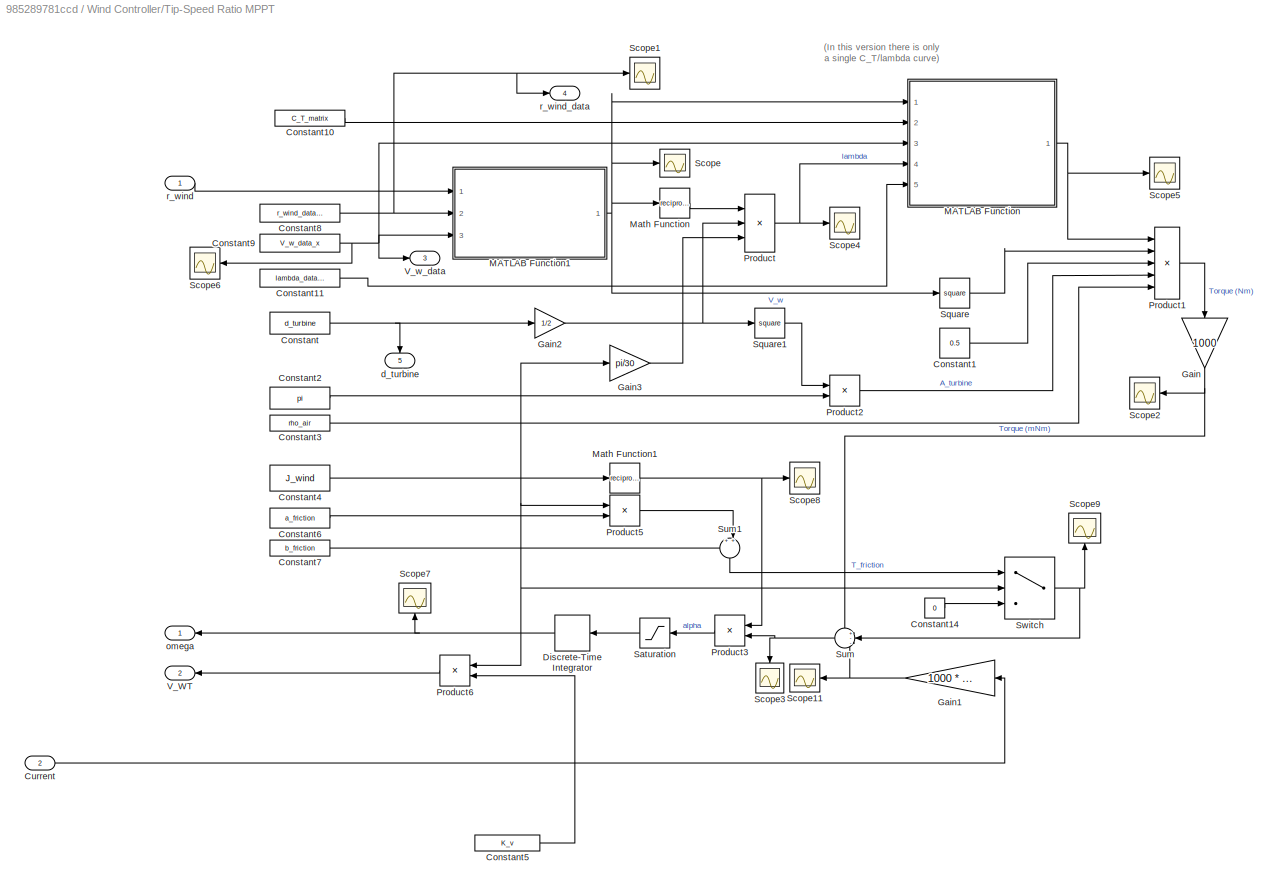
BLOCK [SubSystem] Wind Controller/Tip-Speed Ratio MPPT
  Ports = [2, 5]
  RequestExecContextInheritance = off
BLOCK [Constant] Wind Controller/Tip-Speed Ratio MPPT/Constant
  Value = d_turbine
BLOCK [Constant] Wind Controller/Tip-Speed Ratio MPPT/Constant1
  Value = 0.5
BLOCK [Constant] Wind Controller/Tip-Speed Ratio MPPT/Constant10
  Value = C_T_matrix
BLOCK [Constant] Wind Controller/Tip-Speed Ratio MPPT/Constant11
  Value = lambda_data_x
BLOCK [Constant] Wind Controller/Tip-Speed Ratio MPPT/Constant14
  Value = 0
BLOCK [Constant] Wind Controller/Tip-Speed Ratio MPPT/Constant2
  Value = pi
BLOCK [Constant] Wind Controller/Tip-Speed Ratio MPPT/Constant3
  Value = rho_air
BLOCK [Constant] Wind Controller/Tip-Speed Ratio MPPT/Constant4
  SampleTime = step_size
  Value = J_wind
BLOCK [Constant] Wind Controller/Tip-Speed Ratio MPPT/Constant5
  Value = K_v
BLOCK [Constant] Wind Controller/Tip-Speed Ratio MPPT/Constant6
  Value = a_friction
BLOCK [Constant] Wind Controller/Tip-Speed Ratio MPPT/Constant7
  SampleTime = step_size
  Value = b_friction
BLOCK [Constant] Wind Controller/Tip-Speed Ratio MPPT/Constant8
  Value = r_wind_data_x
BLOCK [Constant] Wind Controller/Tip-Speed Ratio MPPT/Constant9
  Value = V_w_data_x
BLOCK [Inport] Wind Controller/Tip-Speed Ratio MPPT/Current
  Port = 2
BLOCK [DiscreteIntegrator] Wind Controller/Tip-Speed Ratio MPPT/Discrete-Time Integrator
  ICPrevOutput = DiscIntNeverNeededParam
  ICPrevScaledInput = DiscIntNeverNeededParam
  InitialCondition = omega_0
  InitialConditionSetting = Auto
  Ports = [1, 1]
  SampleTime = -1
BLOCK [Gain] Wind Controller/Tip-Speed Ratio MPPT/Gain
  Gain = 1000
  NameLocation = left
BLOCK [Gain] Wind Controller/Tip-Speed Ratio MPPT/Gain1
  Gain = 1000 * K_t
  NameLocation = top
BLOCK [Gain] Wind Controller/Tip-Speed Ratio MPPT/Gain2
  Gain = 1/2
BLOCK [Gain] Wind Controller/Tip-Speed Ratio MPPT/Gain3
  Gain = pi/30
BLOCK [SubSystem] Wind Controller/Tip-Speed Ratio MPPT/MATLAB Function
  ErrorFcn = Stateflow.Translate.translate
  PermitHierarchicalResolution = ExplicitOnly
  Ports = [5, 1]
  RequestExecContextInheritance = off
  SFBlockType = MATLAB Function
  TreatAsAtomicUnit = on
BLOCK [Demux] Wind Controller/Tip-Speed Ratio MPPT/MATLAB Function/ Demux 
  Outputs = 1
  Ports = [1, 1]
BLOCK [S-Function] Wind Controller/Tip-Speed Ratio MPPT/MATLAB Function/ SFunction 
  EnableBusSupport = on
  FunctionName = sf_sfun
  PortCounts = [5 2]
  Ports = [5, 2]
  SFcnIsStateOwnerBlock = off
  SFunctionDeploymentMode = off
  Tag = Stateflow S-Function 2
BLOCK [Terminator] Wind Controller/Tip-Speed Ratio MPPT/MATLAB Function/ Terminator 
BLOCK [Outport] Wind Controller/Tip-Speed Ratio MPPT/MATLAB Function/C_T
BLOCK [Inport] Wind Controller/Tip-Speed Ratio MPPT/MATLAB Function/C_T_matrix
  Port = 2
BLOCK [Inport] Wind Controller/Tip-Speed Ratio MPPT/MATLAB Function/V_w
BLOCK [Inport] Wind Controller/Tip-Speed Ratio MPPT/MATLAB Function/V_w_data
  Port = 3
BLOCK [Inport] Wind Controller/Tip-Speed Ratio MPPT/MATLAB Function/lambda
  Port = 4
BLOCK [Inport] Wind Controller/Tip-Speed Ratio MPPT/MATLAB Function/lambda_data
  Port = 5
BLOCK [SubSystem] Wind Controller/Tip-Speed Ratio MPPT/MATLAB Function1
  ErrorFcn = Stateflow.Translate.translate
  PermitHierarchicalResolution = ExplicitOnly
  Ports = [3, 1]
  RequestExecContextInheritance = off
  SFBlockType = MATLAB Function
  TreatAsAtomicUnit = on
BLOCK [Demux] Wind Controller/Tip-Speed Ratio MPPT/MATLAB Function1/ Demux 
  Outputs = 1
  Ports = [1, 1]
BLOCK [S-Function] Wind Controller/Tip-Speed Ratio MPPT/MATLAB Function1/ SFunction 
  EnableBusSupport = on
  FunctionName = sf_sfun
  PortCounts = [3 2]
  Ports = [3, 2]
  SFcnIsStateOwnerBlock = off
  SFunctionDeploymentMode = off
  Tag = Stateflow S-Function 1
BLOCK [Terminator] Wind Controller/Tip-Speed Ratio MPPT/MATLAB Function1/ Terminator 
BLOCK [Outport] Wind Controller/Tip-Speed Ratio MPPT/MATLAB Function1/V_w
BLOCK [Inport] Wind Controller/Tip-Speed Ratio MPPT/MATLAB Function1/V_w_data
  Port = 3
BLOCK [Inport] Wind Controller/Tip-Speed Ratio MPPT/MATLAB Function1/r_wind
BLOCK [Inport] Wind Controller/Tip-Speed Ratio MPPT/MATLAB Function1/r_wind_data
  Port = 2
BLOCK [Math] Wind Controller/Tip-Speed Ratio MPPT/Math Function
  Operator = reciprocal
  Ports = [1, 1]
  SignedPower = on
BLOCK [Math] Wind Controller/Tip-Speed Ratio MPPT/Math Function1
  Operator = reciprocal
  Ports = [1, 1]
  SignedPower = on
BLOCK [Product] Wind Controller/Tip-Speed Ratio MPPT/Product
  Inputs = 3
  Ports = [3, 1]
BLOCK [Product] Wind Controller/Tip-Speed Ratio MPPT/Product1
  Inputs = 5
  Ports = [5, 1]
BLOCK [Product] Wind Controller/Tip-Speed Ratio MPPT/Product2
  Ports = [2, 1]
BLOCK [Product] Wind Controller/Tip-Speed Ratio MPPT/Product3
  Ports = [2, 1]
BLOCK [Product] Wind Controller/Tip-Speed Ratio MPPT/Product5
  Ports = [2, 1]
BLOCK [Product] Wind Controller/Tip-Speed Ratio MPPT/Product6
  Ports = [2, 1]
BLOCK [Saturate] Wind Controller/Tip-Speed Ratio MPPT/Saturation
  LowerLimit = -40
  UpperLimit = 10000
BLOCK [Scope] Wind Controller/Tip-Speed Ratio MPPT/Scope
  Floating = off
  NumInputPorts = 1
  Ports = [1]
  ScopeSpecificationString = Simulink.scopes.TimeScopeBlockCfg('CurrentConfiguration', extmgr.ConfigurationSet(extmgr.Configuration('Core','General UI',true),extmgr.Configuration('Core','Source UI',true),extmgr.Configuration('Sources','WiredSimulink',true,'DataLoggingVariableName','ScopeData1'),extmgr.Configuration('Visuals','Time Domain',true,'SerializedDisplays',{struct('MinYLimReal','4.25','MaxYLimReal','6.75','YLabelReal'...<+1365ch>
BLOCK [Scope] Wind Controller/Tip-Speed Ratio MPPT/Scope1
  Floating = off
  NumInputPorts = 1
  Ports = [1]
  ScopeSpecificationString = Simulink.scopes.TimeScopeBlockCfg('CurrentConfiguration', extmgr.ConfigurationSet(extmgr.Configuration('Core','General UI',true),extmgr.Configuration('Core','Source UI',true),extmgr.Configuration('Sources','WiredSimulink',true,'DataLoggingVariableName','ScopeData2'),extmgr.Configuration('Visuals','Time Domain',true,'SerializedDisplays',{struct('MinYLimReal','-0.11875','MaxYLimReal','1.06875','YLab...<+2396ch>
BLOCK [Scope] Wind Controller/Tip-Speed Ratio MPPT/Scope11
  Floating = off
  NameLocation = top
  NumInputPorts = 1
  Ports = [1]
  ScopeSpecificationString = Simulink.scopes.TimeScopeBlockCfg('CurrentConfiguration', extmgr.ConfigurationSet(extmgr.Configuration('Core','General UI',true),extmgr.Configuration('Core','Source UI',true),extmgr.Configuration('Sources','WiredSimulink',true,'DataLoggingVariableName','ScopeData18'),extmgr.Configuration('Visuals','Time Domain',true,'SerializedDisplays',{struct('MinYLimReal','-0.50346','MaxYLimReal','4.43285','YLa...<+1365ch>
BLOCK [Scope] Wind Controller/Tip-Speed Ratio MPPT/Scope2
  Floating = off
  NumInputPorts = 1
  Ports = [1]
  ScopeSpecificationString = Simulink.scopes.TimeScopeBlockCfg('CurrentConfiguration', extmgr.ConfigurationSet(extmgr.Configuration('Core','General UI',true),extmgr.Configuration('Core','Source UI',true),extmgr.Configuration('Sources','WiredSimulink',true,'DataLoggingVariableName','ScopeData3'),extmgr.Configuration('Visuals','Time Domain',true,'SerializedDisplays',{struct('MinYLimReal','1.315','MaxYLimReal','5.94477','YLabelR...<+1361ch>
BLOCK [Scope] Wind Controller/Tip-Speed Ratio MPPT/Scope3
  Floating = off
  NameLocation = right
  NumInputPorts = 1
  Ports = [1]
  ScopeSpecificationString = Simulink.scopes.TimeScopeBlockCfg('CurrentConfiguration', extmgr.ConfigurationSet(extmgr.Configuration('Core','General UI',true),extmgr.Configuration('Core','Source UI',true),extmgr.Configuration('Sources','WiredSimulink',true,'DataLoggingVariableName','ScopeData4'),extmgr.Configuration('Visuals','Time Domain',true,'SerializedDisplays',{struct('MinYLimReal','-0.845','MaxYLimReal','1.62107','YLabel...<+1387ch>
BLOCK [Scope] Wind Controller/Tip-Speed Ratio MPPT/Scope4
  Floating = off
  NameLocation = top
  NumInputPorts = 1
  Ports = [1]
  ScopeSpecificationString = Simulink.scopes.TimeScopeBlockCfg('CurrentConfiguration', extmgr.ConfigurationSet(extmgr.Configuration('Core','General UI',true),extmgr.Configuration('Core','Source UI',true),extmgr.Configuration('Sources','WiredSimulink',true,'DataLoggingVariableName','ScopeData5'),extmgr.Configuration('Visuals','Time Domain',true,'SerializedDisplays',{struct('MinYLimReal','0.76552','MaxYLimReal','3.68379','YLabe...<+1392ch>
BLOCK [Scope] Wind Controller/Tip-Speed Ratio MPPT/Scope5
  Floating = off
  NumInputPorts = 1
  Ports = [1]
  ScopeSpecificationString = Simulink.scopes.TimeScopeBlockCfg('CurrentConfiguration', extmgr.ConfigurationSet(extmgr.Configuration('Core','General UI',true),extmgr.Configuration('Core','Source UI',true),extmgr.Configuration('Sources','WiredSimulink',true,'DataLoggingVariableName','ScopeData6'),extmgr.Configuration('Visuals','Time Domain',true,'SerializedDisplays',{struct('MinYLimReal','0.00551','MaxYLimReal','0.01271','YLabe...<+1372ch>
BLOCK [Scope] Wind Controller/Tip-Speed Ratio MPPT/Scope6
  Floating = off
  NumInputPorts = 1
  Ports = [1]
  ScopeSpecificationString = Simulink.scopes.TimeScopeBlockCfg('CurrentConfiguration', extmgr.ConfigurationSet(extmgr.Configuration('Core','General UI',true),extmgr.Configuration('Core','Source UI',true),extmgr.Configuration('Sources','WiredSimulink',true,'DataLoggingVariableName','ScopeData13'),extmgr.Configuration('Visuals','Time Domain',true,'SerializedDisplays',{struct('MinYLimReal','-1.1875','MaxYLimReal','10.6875','YLab...<+2366ch>
BLOCK [Scope] Wind Controller/Tip-Speed Ratio MPPT/Scope7
  Floating = off
  NameLocation = right
  NumInputPorts = 1
  Ports = [1]
  ScopeSpecificationString = Simulink.scopes.TimeScopeBlockCfg('CurrentConfiguration', extmgr.ConfigurationSet(extmgr.Configuration('Core','General UI',true),extmgr.Configuration('Core','Source UI',true),extmgr.Configuration('Sources','WiredSimulink',true,'DataLoggingVariableName','ScopeData14'),extmgr.Configuration('Visuals','Time Domain',true,'SerializedDisplays',{struct('MinYLimReal','587.84565','MaxYLimReal','3309.38915',...<+1431ch>
BLOCK [Scope] Wind Controller/Tip-Speed Ratio MPPT/Scope8
  Floating = off
  NumInputPorts = 1
  Ports = [1]
  ScopeSpecificationString = Simulink.scopes.TimeScopeBlockCfg('CurrentConfiguration', extmgr.ConfigurationSet(extmgr.Configuration('Core','General UI',true),extmgr.Configuration('Core','Source UI',true),extmgr.Configuration('Sources','WiredSimulink',true,'DataLoggingVariableName','ScopeData15'),extmgr.Configuration('Visuals','Time Domain',true,'SerializedDisplays',{struct('MinYLimReal','906.57769','MaxYLimReal','2906.57769',...<+1427ch>
BLOCK [Scope] Wind Controller/Tip-Speed Ratio MPPT/Scope9
  Floating = off
  NameLocation = right
  NumInputPorts = 1
  Ports = [1]
  ScopeSpecificationString = Simulink.scopes.TimeScopeBlockCfg('CurrentConfiguration', extmgr.ConfigurationSet(extmgr.Configuration('Core','General UI',true),extmgr.Configuration('Core','Source UI',true),extmgr.Configuration('Sources','WiredSimulink',true,'DataLoggingVariableName','ScopeData16'),extmgr.Configuration('Visuals','Time Domain',true,'SerializedDisplays',{struct('MinYLimReal','0.19','MaxYLimReal','2.19','YLabelReal...<+1340ch>
BLOCK [Math] Wind Controller/Tip-Speed Ratio MPPT/Square
  Operator = square
  Ports = [1, 1]
  SignedPower = on
BLOCK [Math] Wind Controller/Tip-Speed Ratio MPPT/Square1
  Operator = square
  Ports = [1, 1]
  SignedPower = on
BLOCK [Sum] Wind Controller/Tip-Speed Ratio MPPT/Sum
  Inputs = +--
  Ports = [3, 1]
BLOCK [Sum] Wind Controller/Tip-Speed Ratio MPPT/Sum1
  Inputs = ++|
  NameLocation = right
  Ports = [2, 1]
BLOCK [Switch] Wind Controller/Tip-Speed Ratio MPPT/Switch
  Criteria = u2 > Threshold
  InputSameDT = off
  SaturateOnIntegerOverflow = off
  Threshold = 10
BLOCK [Outport] Wind Controller/Tip-Speed Ratio MPPT/V_WT
  Port = 2
BLOCK [Outport] Wind Controller/Tip-Speed Ratio MPPT/V_w_data
  Port = 3
BLOCK [Outport] Wind Controller/Tip-Speed Ratio MPPT/d_turbine
  NameLocation = left
  Port = 5
BLOCK [Outport] Wind Controller/Tip-Speed Ratio MPPT/omega
BLOCK [Inport] Wind Controller/Tip-Speed Ratio MPPT/r_wind
BLOCK [Outport] Wind Controller/Tip-Speed Ratio MPPT/r_wind_data
  Port = 4
BLOCK [Outport] Wind Controller/V_WT
  Port = 3
BLOCK [Outport] Wind Controller/WT_PWM
  Port = 2
BLOCK [Inport] Wind Controller/r_LED
  Port = 2
BLOCK [Inport] Wind Controller/r_WT
ANNOTATION (root): The power supply here has no input PWM signal as it will not be taken into account for the simulation aspect of this project. However, the parts remain functional in case any future projects plan to carry on with this model.
ANNOTATION Wind Controller/Tip-Speed Ratio MPPT: (In this version there is only a single C_T/lambda curve)
LINE Constant6:1 -> Subsystem:7
NET Demand:1 -> Hydrogen Controller:3, Wind Controller:2
LINE Hydrogen Controller/Constant1:1 -> Hydrogen Controller/Product:2
LINE Hydrogen Controller/Constant2:1 -> Hydrogen Controller/Product2:2
LINE Hydrogen Controller/Constant3:1 -> Hydrogen Controller/Product1:2
LINE Hydrogen Controller/Constant4:1 -> Hydrogen Controller/Divide1:1
LINE Hydrogen Controller/Constant5:1 -> Hydrogen Controller/Divide:2
LINE Hydrogen Controller/Divide1:1 -> Hydrogen Controller/FC_PWM:1
LINE Hydrogen Controller/Divide:1 -> Hydrogen Controller/EL_PWM:1
LINE Hydrogen Controller/If Action Subsystem/Abs:1 -> Hydrogen Controller/If Action Subsystem/Out1:1
LINE Hydrogen Controller/If Action Subsystem/In1:1 -> Hydrogen Controller/If Action Subsystem/Abs:1
LINE Hydrogen Controller/If Action Subsystem1/In1:1 -> Hydrogen Controller/If Action Subsystem1/Out1:1
LINE Hydrogen Controller/If Action Subsystem1:1 -> Hydrogen Controller/Divide:1
LINE Hydrogen Controller/If Action Subsystem:1 -> Hydrogen Controller/Divide1:2
LINE Hydrogen Controller/If:1 -> Hydrogen Controller/If Action Subsystem1:ifaction
LINE Hydrogen Controller/If:2 -> Hydrogen Controller/If Action Subsystem:ifaction
LINE Hydrogen Controller/Product1:1 -> Hydrogen Controller/Sum:3
LINE Hydrogen Controller/Product2:1 -> Hydrogen Controller/Sum:2
LINE Hydrogen Controller/Product:1 -> Hydrogen Controller/Sum:1
NET Hydrogen Controller/Sum:1 -> Hydrogen Controller/If Action Subsystem1:1, Hydrogen Controller/If Action Subsystem:1, Hydrogen Controller/If:1
LINE Hydrogen Controller/r_LED:1 -> Hydrogen Controller/Product1:1
LINE Hydrogen Controller/r_SP:1 -> Hydrogen Controller/Product2:1
LINE Hydrogen Controller/r_WT:1 -> Hydrogen Controller/Product:1
NET Hydrogen Controller:1 -> Scope4:1, Subsystem:2
NET Hydrogen Controller:2 -> Scope5:1, Subsystem:3
NET Power Supply:1 -> Scope3:1, Subsystem:1
NET Solar:1 -> Hydrogen Controller:2, Scope1:1, Subsystem:8
LINE Subsystem/Arduino/In1:1 -> Subsystem/Arduino/PWM Generator1:1
LINE Subsystem/Arduino/PS-Simulink Converter4:1 -> Subsystem/Arduino/Scope4:1
LINE Subsystem/Arduino/PWM Generator1:1 -> Subsystem/Arduino/Simulink-PS Converter2:1
LINE Subsystem/Constant3:1 -> Subsystem/Simulink-PS Converter4:1
LINE Subsystem/Constant5:1 -> Subsystem/Divide:2
LINE Subsystem/Constant:1 -> Subsystem/Simulink-PS Converter6:1
LINE Subsystem/DC-DC Booster1/Constant:1 -> Subsystem/DC-DC Booster1/Simulink-PS Converter:1
NET Subsystem/DC-DC Booster1/Divide:1 -> Subsystem/DC-DC Booster1/Output:1, Subsystem/DC-DC Booster1/Scope4:1, Subsystem/DC-DC Booster1/Simulink-PS Converter1:1
LINE Subsystem/DC-DC Booster1/Input1:1 -> Subsystem/DC-DC Booster1/Sum:2
LINE Subsystem/DC-DC Booster1/Input2:1 -> Subsystem/DC-DC Booster1/Sum:3
LINE Subsystem/DC-DC Booster1/Input:1 -> Subsystem/DC-DC Booster1/Sum:1
LINE Subsystem/DC-DC Booster1/PS-Simulink Converter1:1 -> Subsystem/DC-DC Booster1/Sum:4
LINE Subsystem/DC-DC Booster1/PS-Simulink Converter2:1 -> Subsystem/DC-DC Booster1/Scope2:1
LINE Subsystem/DC-DC Booster1/PS-Simulink Converter3:1 -> Subsystem/DC-DC Booster1/Scope3:1
LINE Subsystem/DC-DC Booster1/PS-Simulink Converter:1 -> Subsystem/DC-DC Booster1/Saturation:1
NET Subsystem/DC-DC Booster1/Saturation1:1 -> Subsystem/DC-DC Booster1/Divide:2, Subsystem/DC-DC Booster1/Scope:1
NET Subsystem/DC-DC Booster1/Saturation:1 -> Subsystem/DC-DC Booster1/Divide:1, Subsystem/DC-DC Booster1/Scope1:1
LINE Subsystem/DC-DC Booster1/Sum:1 -> Subsystem/DC-DC Booster1/Saturation1:1
NET Subsystem/DC-DC Booster1:1 -> Subsystem/DC-DC Booster2:1, Subsystem/DC-DC Booster3:1, Subsystem/DC-DC Booster4:1
LINE Subsystem/DC-DC Booster2/Constant:1 -> Subsystem/DC-DC Booster2/Divide1:3
NET Subsystem/DC-DC Booster2/Divide1:1 -> Subsystem/DC-DC Booster2/Output:1, Subsystem/DC-DC Booster2/Scope5:1, Subsystem/DC-DC Booster2/Simulink-PS Converter:1
LINE Subsystem/DC-DC Booster2/Input:1 -> Subsystem/DC-DC Booster2/Simulink-PS Converter1:1
LINE Subsystem/DC-DC Booster2/PS-Simulink Converter1:1 -> Subsystem/DC-DC Booster2/Saturation1:1
NET Subsystem/DC-DC Booster2/PS-Simulink Converter2:1 -> Subsystem/DC-DC Booster2/Divide1:2, Subsystem/DC-DC Booster2/Scope2:1
NET Subsystem/DC-DC Booster2/PS-Simulink Converter3:1 -> Subsystem/DC-DC Booster2/Divide1:1, Subsystem/DC-DC Booster2/Scope3:1
LINE Subsystem/DC-DC Booster2/PS-Simulink Converter:1 -> Subsystem/DC-DC Booster2/Saturation:1
LINE Subsystem/DC-DC Booster2/Saturation1:1 -> Subsystem/DC-DC Booster2/Scope:1
LINE Subsystem/DC-DC Booster2/Saturation:1 -> Subsystem/DC-DC Booster2/Scope1:1
LINE Subsystem/DC-DC Booster2:1 -> Subsystem/DC-DC Booster1:2
LINE Subsystem/DC-DC Booster3/Constant:1 -> Subsystem/DC-DC Booster3/Divide1:3
NET Subsystem/DC-DC Booster3/Divide1:1 -> Subsystem/DC-DC Booster3/Output:1, Subsystem/DC-DC Booster3/Scope5:1, Subsystem/DC-DC Booster3/Simulink-PS Converter:1
LINE Subsystem/DC-DC Booster3/Input:1 -> Subsystem/DC-DC Booster3/Simulink-PS Converter1:1
LINE Subsystem/DC-DC Booster3/PS-Simulink Converter1:1 -> Subsystem/DC-DC Booster3/Saturation1:1
NET Subsystem/DC-DC Booster3/PS-Simulink Converter2:1 -> Subsystem/DC-DC Booster3/Divide1:2, Subsystem/DC-DC Booster3/Scope2:1
NET Subsystem/DC-DC Booster3/PS-Simulink Converter3:1 -> Subsystem/DC-DC Booster3/Divide1:1, Subsystem/DC-DC Booster3/Output1:1, Subsystem/DC-DC Booster3/Scope3:1
LINE Subsystem/DC-DC Booster3/PS-Simulink Converter:1 -> Subsystem/DC-DC Booster3/Saturation:1
LINE Subsystem/DC-DC Booster3/Saturation1:1 -> Subsystem/DC-DC Booster3/Scope:1
LINE Subsystem/DC-DC Booster3/Saturation:1 -> Subsystem/DC-DC Booster3/Scope1:1
LINE Subsystem/DC-DC Booster3:1 -> Subsystem/DC-DC Booster1:1
LINE Subsystem/DC-DC Booster3:2 -> Subsystem/Current:1
LINE Subsystem/DC-DC Booster4/Constant:1 -> Subsystem/DC-DC Booster4/Divide1:3
NET Subsystem/DC-DC Booster4/Divide1:1 -> Subsystem/DC-DC Booster4/Output:1, Subsystem/DC-DC Booster4/Scope5:1, Subsystem/DC-DC Booster4/Simulink-PS Converter:1
LINE Subsystem/DC-DC Booster4/Input:1 -> Subsystem/DC-DC Booster4/Simulink-PS Converter1:1
LINE Subsystem/DC-DC Booster4/PS-Simulink Converter1:1 -> Subsystem/DC-DC Booster4/Saturation1:1
NET Subsystem/DC-DC Booster4/PS-Simulink Converter2:1 -> Subsystem/DC-DC Booster4/Divide1:2, Subsystem/DC-DC Booster4/Scope2:1
NET Subsystem/DC-DC Booster4/PS-Simulink Converter3:1 -> Subsystem/DC-DC Booster4/Divide1:1, Subsystem/DC-DC Booster4/Scope3:1
LINE Subsystem/DC-DC Booster4/PS-Simulink Converter:1 -> Subsystem/DC-DC Booster4/Saturation:1
LINE Subsystem/DC-DC Booster4/Saturation1:1 -> Subsystem/DC-DC Booster4/Scope:1
LINE Subsystem/DC-DC Booster4/Saturation:1 -> Subsystem/DC-DC Booster4/Scope1:1
LINE Subsystem/DC-DC Booster4:1 -> Subsystem/DC-DC Booster1:3
NET Subsystem/Divide:1 -> Subsystem/Scope8:1, Subsystem/Simulink-PS Converter3:1
LINE Subsystem/EL_PWM:1 -> Subsystem/Saturation2:1
LINE Subsystem/FC_PWM:1 -> Subsystem/Saturation3:1
NET Subsystem/I_SP:1 -> Subsystem/Scope11:1, Subsystem/Simulink-PS Converter2:1
LINE Subsystem/LED_PWM:1 -> Subsystem/Saturation1:1
LINE Subsystem/PS-Simulink Converter10:1 -> Subsystem/Saturation9:1
LINE Subsystem/PS-Simulink Converter11:1 -> Subsystem/Saturation6:1
LINE Subsystem/PS-Simulink Converter12:1 -> Subsystem/Product11:2
LINE Subsystem/PS-Simulink Converter14:1 -> Subsystem/Saturation5:1
LINE Subsystem/PS-Simulink Converter15:1 -> Subsystem/Scope7:1
NET Subsystem/PS-Simulink Converter16:1 -> Subsystem/Saturation7:1, Subsystem/Scope21:1
LINE Subsystem/PS-Simulink Converter18:1 -> Subsystem/Scope6:1
NET Subsystem/PS-Simulink Converter19:1 -> Subsystem/Saturation8:1, Subsystem/Scope22:1
NET Subsystem/PS-Simulink Converter1:1 -> Subsystem/Product10:2, Subsystem/Product7:2, Subsystem/Product8:2, Subsystem/Product9:1, Subsystem/Scope14:1
LINE Subsystem/PS-Simulink Converter2:1 -> Subsystem/Scope23:1
LINE Subsystem/PS-Simulink Converter3:1 -> Subsystem/Scope13:1
LINE Subsystem/PS-Simulink Converter4:1 -> Subsystem/Scope18:1
LINE Subsystem/PS_PWM:1 -> Subsystem/Saturation4:1
NET Subsystem/Product10:1 -> Subsystem/P_FC1:1, Subsystem/Scope4:1
NET Subsystem/Product11:1 -> Subsystem/P_EL1:1, Subsystem/Scope:1
NET Subsystem/Product7:1 -> Subsystem/P_PS1:1, Subsystem/Scope1:1
NET Subsystem/Product8:1 -> Subsystem/P_WT1:1, Subsystem/Scope2:1
NET Subsystem/Product9:1 -> Subsystem/P_SP1:1, Subsystem/Scope3:1
LINE Subsystem/Saturation1:1 -> Subsystem/Divide:1
NET Subsystem/Saturation2:1 -> Subsystem/Scope9:1, Subsystem/Subsystem5:1
NET Subsystem/Saturation3:1 -> Subsystem/Scope26:1, Subsystem/Subsystem7:1
NET Subsystem/Saturation4:1 -> Subsystem/Scope19:1, Subsystem/Subsystem6:1
NET Subsystem/Saturation5:1 -> Subsystem/Product8:1, Subsystem/Scope15:1
NET Subsystem/Saturation6:1 -> Subsystem/Product7:1, Subsystem/Scope20:1
NET Subsystem/Saturation7:1 -> Subsystem/Product9:2, Subsystem/Scope12:1
NET Subsystem/Saturation8:1 -> Subsystem/Product10:1, Subsystem/Scope17:1
NET Subsystem/Saturation9:1 -> Subsystem/Product11:1, Subsystem/Scope16:1
NET Subsystem/Saturation:1 -> Subsystem/Arduino:1, Subsystem/Scope10:1
LINE Subsystem/Subsystem5/In1:1 -> Subsystem/Subsystem5/PWM Generator1:1
LINE Subsystem/Subsystem5/PS-Simulink Converter4:1 -> Subsystem/Subsystem5/Scope4:1
LINE Subsystem/Subsystem5/PWM Generator1:1 -> Subsystem/Subsystem5/Simulink-PS Converter2:1
LINE Subsystem/Subsystem6/In1:1 -> Subsystem/Subsystem6/PWM Generator1:1
LINE Subsystem/Subsystem6/PS-Simulink Converter4:1 -> Subsystem/Subsystem6/Scope4:1
LINE Subsystem/Subsystem6/PWM Generator1:1 -> Subsystem/Subsystem6/Simulink-PS Converter2:1
LINE Subsystem/Subsystem7/In1:1 -> Subsystem/Subsystem7/PWM Generator2:1
LINE Subsystem/Subsystem7/PS-Simulink Converter6:1 -> Subsystem/Subsystem7/Scope6:1
LINE Subsystem/Subsystem7/PWM Generator2:1 -> Subsystem/Subsystem7/Simulink-PS Converter3:1
LINE Subsystem/V_FC:1 -> Subsystem/Simulink-PS Converter1:1
LINE Subsystem/V_WT:1 -> Subsystem/Simulink-PS Converter:1
LINE Subsystem/WT_PWM:1 -> Subsystem/Saturation:1
LINE Subsystem:1 -> P_PS1:1
LINE Subsystem:2 -> P_WT1:1
LINE Subsystem:3 -> P_SP1:1
LINE Subsystem:4 -> P_FC1:1
LINE Subsystem:5 -> P_EL1:1
LINE Subsystem:6 -> Wind Controller:3
LINE Wind Controller/Constant:1 -> Wind Controller/Sum:1
LINE Wind Controller/Current:1 -> Wind Controller/Tip-Speed Ratio MPPT:2
LINE Wind Controller/Gain:1 -> Wind Controller/LED_PWM:1
LINE Wind Controller/Lambda calculation/Lookup Table Dynamic:1 -> Wind Controller/Lambda calculation/Math Function:1
LINE Wind Controller/Lambda calculation/Math Function:1 -> Wind Controller/Lambda calculation/Product:1
LINE Wind Controller/Lambda calculation/Product:1 -> Wind Controller/Lambda calculation/lambda:1
LINE Wind Controller/Lambda calculation/R_turbine:1 -> Wind Controller/Lambda calculation/Product:3
LINE Wind Controller/Lambda calculation/V_w_data:1 -> Wind Controller/Lambda calculation/Lookup Table Dynamic:3
LINE Wind Controller/Lambda calculation/omega:1 -> Wind Controller/Lambda calculation/Product:2
LINE Wind Controller/Lambda calculation/r_wind:1 -> Wind Controller/Lambda calculation/Lookup Table Dynamic:1
LINE Wind Controller/Lambda calculation/r_wind_data:1 -> Wind Controller/Lambda calculation/Lookup Table Dynamic:2
LINE Wind Controller/Lambda calculation:1 -> Wind Controller/Sum:2
LINE Wind Controller/PID Controller:1 -> Wind Controller/WT_PWM:1
LINE Wind Controller/Sum:1 -> Wind Controller/PID Controller:1
LINE Wind Controller/Tip-Speed Ratio MPPT/Constant10:1 -> Wind Controller/Tip-Speed Ratio MPPT/MATLAB Function:2
LINE Wind Controller/Tip-Speed Ratio MPPT/Constant11:1 -> Wind Controller/Tip-Speed Ratio MPPT/MATLAB Function:5
LINE Wind Controller/Tip-Speed Ratio MPPT/Constant14:1 -> Wind Controller/Tip-Speed Ratio MPPT/Switch:3
LINE Wind Controller/Tip-Speed Ratio MPPT/Constant1:1 -> Wind Controller/Tip-Speed Ratio MPPT/Product1:3
LINE Wind Controller/Tip-Speed Ratio MPPT/Constant2:1 -> Wind Controller/Tip-Speed Ratio MPPT/Product2:2
LINE Wind Controller/Tip-Speed Ratio MPPT/Constant3:1 -> Wind Controller/Tip-Speed Ratio MPPT/Product1:5
LINE Wind Controller/Tip-Speed Ratio MPPT/Constant4:1 -> Wind Controller/Tip-Speed Ratio MPPT/Math Function1:1
LINE Wind Controller/Tip-Speed Ratio MPPT/Constant5:1 -> Wind Controller/Tip-Speed Ratio MPPT/Product6:2
LINE Wind Controller/Tip-Speed Ratio MPPT/Constant6:1 -> Wind Controller/Tip-Speed Ratio MPPT/Product5:2
LINE Wind Controller/Tip-Speed Ratio MPPT/Constant7:1 -> Wind Controller/Tip-Speed Ratio MPPT/Sum1:1
NET Wind Controller/Tip-Speed Ratio MPPT/Constant8:1 -> Wind Controller/Tip-Speed Ratio MPPT/MATLAB Function1:2, Wind Controller/Tip-Speed Ratio MPPT/Scope1:1, Wind Controller/Tip-Speed Ratio MPPT/r_wind_data:1
NET Wind Controller/Tip-Speed Ratio MPPT/Constant9:1 -> Wind Controller/Tip-Speed Ratio MPPT/MATLAB Function1:3, Wind Controller/Tip-Speed Ratio MPPT/MATLAB Function:3, Wind Controller/Tip-Speed Ratio MPPT/Scope6:1, Wind Controller/Tip-Speed Ratio MPPT/V_w_data:1
NET Wind Controller/Tip-Speed Ratio MPPT/Constant:1 -> Wind Controller/Tip-Speed Ratio MPPT/Gain2:1, Wind Controller/Tip-Speed Ratio MPPT/d_turbine:1
LINE Wind Controller/Tip-Speed Ratio MPPT/Current:1 -> Wind Controller/Tip-Speed Ratio MPPT/Gain1:1
NET Wind Controller/Tip-Speed Ratio MPPT/Discrete-Time Integrator:1 -> Wind Controller/Tip-Speed Ratio MPPT/Gain3:1, Wind Controller/Tip-Speed Ratio MPPT/Product5:1, Wind Controller/Tip-Speed Ratio MPPT/Product6:1, Wind Controller/Tip-Speed Ratio MPPT/Scope7:1, Wind Controller/Tip-Speed Ratio MPPT/Switch:2, Wind Controller/Tip-Speed Ratio MPPT/omega:1
NET Wind Controller/Tip-Speed Ratio MPPT/Gain1:1 -> Wind Controller/Tip-Speed Ratio MPPT/Scope11:1, Wind Controller/Tip-Speed Ratio MPPT/Sum:3
NET Wind Controller/Tip-Speed Ratio MPPT/Gain2:1 -> Wind Controller/Tip-Speed Ratio MPPT/Product:2, Wind Controller/Tip-Speed Ratio MPPT/Square1:1
LINE Wind Controller/Tip-Speed Ratio MPPT/Gain3:1 -> Wind Controller/Tip-Speed Ratio MPPT/Product:3
NET Wind Controller/Tip-Speed Ratio MPPT/Gain:1 -> Wind Controller/Tip-Speed Ratio MPPT/Scope2:1, Wind Controller/Tip-Speed Ratio MPPT/Sum:1
NET Wind Controller/Tip-Speed Ratio MPPT/MATLAB Function1:1 -> Wind Controller/Tip-Speed Ratio MPPT/MATLAB Function:1, Wind Controller/Tip-Speed Ratio MPPT/Math Function:1, Wind Controller/Tip-Speed Ratio MPPT/Scope:1, Wind Controller/Tip-Speed Ratio MPPT/Square:1
NET Wind Controller/Tip-Speed Ratio MPPT/MATLAB Function:1 -> Wind Controller/Tip-Speed Ratio MPPT/Product1:1, Wind Controller/Tip-Speed Ratio MPPT/Scope5:1
NET Wind Controller/Tip-Speed Ratio MPPT/Math Function1:1 -> Wind Controller/Tip-Speed Ratio MPPT/Product3:1, Wind Controller/Tip-Speed Ratio MPPT/Scope8:1
LINE Wind Controller/Tip-Speed Ratio MPPT/Math Function:1 -> Wind Controller/Tip-Speed Ratio MPPT/Product:1
LINE Wind Controller/Tip-Speed Ratio MPPT/Product1:1 -> Wind Controller/Tip-Speed Ratio MPPT/Gain:1
LINE Wind Controller/Tip-Speed Ratio MPPT/Product2:1 -> Wind Controller/Tip-Speed Ratio MPPT/Product1:4
LINE Wind Controller/Tip-Speed Ratio MPPT/Product3:1 -> Wind Controller/Tip-Speed Ratio MPPT/Saturation:1
LINE Wind Controller/Tip-Speed Ratio MPPT/Product5:1 -> Wind Controller/Tip-Speed Ratio MPPT/Sum1:2
LINE Wind Controller/Tip-Speed Ratio MPPT/Product6:1 -> Wind Controller/Tip-Speed Ratio MPPT/V_WT:1
NET Wind Controller/Tip-Speed Ratio MPPT/Product:1 -> Wind Controller/Tip-Speed Ratio MPPT/MATLAB Function:4, Wind Controller/Tip-Speed Ratio MPPT/Scope4:1
LINE Wind Controller/Tip-Speed Ratio MPPT/Saturation:1 -> Wind Controller/Tip-Speed Ratio MPPT/Discrete-Time Integrator:1
LINE Wind Controller/Tip-Speed Ratio MPPT/Square1:1 -> Wind Controller/Tip-Speed Ratio MPPT/Product2:1
LINE Wind Controller/Tip-Speed Ratio MPPT/Square:1 -> Wind Controller/Tip-Speed Ratio MPPT/Product1:2
LINE Wind Controller/Tip-Speed Ratio MPPT/Sum1:1 -> Wind Controller/Tip-Speed Ratio MPPT/Switch:1
NET Wind Controller/Tip-Speed Ratio MPPT/Sum:1 -> Wind Controller/Tip-Speed Ratio MPPT/Product3:2, Wind Controller/Tip-Speed Ratio MPPT/Scope3:1
NET Wind Controller/Tip-Speed Ratio MPPT/Switch:1 -> Wind Controller/Tip-Speed Ratio MPPT/Scope9:1, Wind Controller/Tip-Speed Ratio MPPT/Sum:2
LINE Wind Controller/Tip-Speed Ratio MPPT/r_wind:1 -> Wind Controller/Tip-Speed Ratio MPPT/MATLAB Function1:1
LINE Wind Controller/Tip-Speed Ratio MPPT:1 -> Wind Controller/Lambda calculation:2
LINE Wind Controller/Tip-Speed Ratio MPPT:2 -> Wind Controller/V_WT:1
LINE Wind Controller/Tip-Speed Ratio MPPT:3 -> Wind Controller/Lambda calculation:3
LINE Wind Controller/Tip-Speed Ratio MPPT:4 -> Wind Controller/Lambda calculation:4
LINE Wind Controller/Tip-Speed Ratio MPPT:5 -> Wind Controller/Lambda calculation:5
LINE Wind Controller/r_LED:1 -> Wind Controller/Gain:1
NET Wind Controller/r_WT:1 -> Wind Controller/Lambda calculation:1, Wind Controller/Tip-Speed Ratio MPPT:1
NET Wind Controller:1 -> Scope6:1, Subsystem:4
NET Wind Controller:2 -> Scope2:1, Subsystem:5
NET Wind Controller:3 -> Scope7:1, Subsystem:6
NET Wind:1 -> Hydrogen Controller:1, Wind Controller:1
PNET net1: Subsystem/ :LConn1 -- Subsystem/Capacitor6:LConn1 -- Subsystem/Current Sensor6:RConn2 -- Subsystem/Current Sensor7:RConn2 -- Subsystem/Current Sensor8:RConn2 -- Subsystem/DC-DC Booster1:RConn1 -- Subsystem/Diode9:RConn1 -- Subsystem/Fuse1:LConn1 -- Subsystem/Variable Resistor1:LConn2 -- Subsystem/Voltage Sensor1:LConn1
PNET net2: Subsystem/ :RConn1 -- Subsystem/Capacitor6:RConn1 -- Subsystem/Current Sensor9:LConn1 -- Subsystem/Diode9:LConn1 -- Subsystem/Solver Configuration3:RConn1
PNET net3: Subsystem/.:LConn1 -- Subsystem/Resistor14:LConn1 -- Subsystem/Subsystem7:RConn1
PNET net4: Subsystem/.:RConn1 -- Subsystem/Capacitor7:RConn1 -- Subsystem/DC-DC Booster4:LConn2 -- Subsystem/Diode8:LConn1
PNET net5: Subsystem/.:RConn2 -- Subsystem/Controlled Voltage Source2:RConn2 -- Subsystem/Electrical Reference3:LConn1 -- Subsystem/Resistor14:RConn1 -- Subsystem/Solver Configuration4:RConn1 -- Subsystem/Subsystem7:RConn2 -- Subsystem/Voltage Sensor9:RConn2
PNET net6: Subsystem/Arduino/Conn1:RConn1 -- Subsystem/Arduino/Controlled PWM Voltage1:RConn1 -- Subsystem/Arduino/Voltage Sensor2:LConn1
PLINE Subsystem/Arduino/Controlled PWM Voltage1:LConn1 -- Subsystem/Arduino/Simulink-PS Converter2:RConn1
PNET net7: Subsystem/Arduino/Controlled PWM Voltage1:RConn2 -- Subsystem/Arduino/Electrical Reference:RConn1 -- Subsystem/Arduino/Voltage Sensor2:RConn2
PLINE Subsystem/Arduino/PS-Simulink Converter4:LConn1 -- Subsystem/Arduino/Voltage Sensor2:RConn1
PNET net8: Subsystem/Arduino:RConn1 -- Subsystem/IRLZ-34N MOSFET3:LConn1 -- Subsystem/Resistor11:LConn1 -- Subsystem/Voltage Sensor3:LConn1
PNET net9: Subsystem/Arduino:RConn2 -- Subsystem/Controlled Voltage Source1:RConn2 -- Subsystem/Electrical Reference:LConn1 -- Subsystem/IRLZ-34N MOSFET3:RConn2 -- Subsystem/Resistor11:RConn1 -- Subsystem/Voltage Sensor2:RConn2 -- Subsystem/Voltage Sensor3:RConn2 -- Subsystem/Voltage Sensor8:RConn2
PNET net10: Subsystem/Capacitor1:LConn1 -- Subsystem/DC-DC Booster3:LConn1 -- Subsystem/Resistor2:RConn1
PNET net11: Subsystem/Capacitor1:RConn1 -- Subsystem/DC-DC Booster3:LConn2 -- Subsystem/IRLZ-34N MOSFET3:RConn1 -- Subsystem/Voltage Sensor2:LConn1
PNET net12: Subsystem/Capacitor2:LConn1 -- Subsystem/DC-DC Booster1:LConn1 -- Subsystem/Resistor1:RConn1
PNET net13: Subsystem/Capacitor2:RConn1 -- Subsystem/DC-DC Booster1:LConn2 -- Subsystem/Diode5:LConn1 -- Subsystem/IRLZ-34N MOSFET2:RConn1 -- Subsystem/Solver Configuration1:RConn1
PNET net14: Subsystem/Capacitor7:LConn1 -- Subsystem/DC-DC Booster4:LConn1 -- Subsystem/Resistor13:RConn1
PNET net15: Subsystem/Controlled Current Source:LConn1 -- Subsystem/Solver Configuration2:RConn1 -- Subsystem/Variable Resistor2:LConn2 -- Subsystem/Voltage Sensor5:LConn1
PLINE Subsystem/Controlled Current Source:RConn1 -- Subsystem/Simulink-PS Converter2:RConn1
PNET net16: Subsystem/Controlled Current Source:RConn2 -- Subsystem/DC-DC Booster2:LConn2 -- Subsystem/Electrical Reference1:LConn1
PNET net17: Subsystem/Controlled Voltage Source1:LConn1 -- Subsystem/Resistor2:LConn1 -- Subsystem/Solver Configuration:RConn1 -- Subsystem/Voltage Sensor8:LConn1
PLINE Subsystem/Controlled Voltage Source1:RConn1 -- Subsystem/Simulink-PS Converter:RConn1
PNET net18: Subsystem/Controlled Voltage Source2:LConn1 -- Subsystem/Diode8:RConn1 -- Subsystem/Resistor13:LConn1 -- Subsystem/Voltage Sensor9:LConn1
PLINE Subsystem/Controlled Voltage Source2:RConn1 -- Subsystem/Simulink-PS Converter1:RConn1
PLINE Subsystem/Controlled Voltage Source:LConn1 -- Subsystem/Current Sensor5:LConn1
PLINE Subsystem/Controlled Voltage Source:RConn1 -- Subsystem/Simulink-PS Converter4:RConn1
PNET net19: Subsystem/Controlled Voltage Source:RConn2 -- Subsystem/Electrical Reference4:LConn1 -- Subsystem/IRLZ-34N MOSFET2:RConn2 -- Subsystem/Resistor10:RConn1 -- Subsystem/Subsystem6:RConn2
PNET net20: Subsystem/Current Sensor1:LConn1 -- Subsystem/Variable Resistor2:RConn1 -- Subsystem/Voltage Sensor5:RConn2
PLINE Subsystem/Current Sensor1:RConn1 -- Subsystem/PS-Simulink Converter2:LConn1
PLINE Subsystem/Current Sensor1:RConn2 -- Subsystem/DC-DC Booster2:LConn1
PLINE Subsystem/Current Sensor5:RConn1 -- Subsystem/PS-Simulink Converter11:LConn1
PNET net21: Subsystem/Current Sensor5:RConn2 -- Subsystem/Diode5:RConn1 -- Subsystem/Resistor1:LConn1
PLINE Subsystem/Current Sensor6:LConn1 -- Subsystem/DC-DC Booster3:RConn1
PLINE Subsystem/Current Sensor6:RConn1 -- Subsystem/PS-Simulink Converter14:LConn1
PLINE Subsystem/Current Sensor7:LConn1 -- Subsystem/DC-DC Booster2:RConn1
PLINE Subsystem/Current Sensor7:RConn1 -- Subsystem/PS-Simulink Converter16:LConn1
PLINE Subsystem/Current Sensor8:LConn1 -- Subsystem/DC-DC Booster4:RConn1
PLINE Subsystem/Current Sensor8:RConn1 -- Subsystem/PS-Simulink Converter19:LConn1
PLINE Subsystem/Current Sensor9:RConn1 -- Subsystem/PS-Simulink Converter10:LConn1
PNET net22: Subsystem/Current Sensor9:RConn2 -- Subsystem/Electrolyzer1:RConn1 -- Subsystem/IRLZ-34N MOSFET5:RConn1 -- Subsystem/Voltage Sensor7:RConn2
PNET net23: Subsystem/DC-DC Booster1/Connection Port1:RConn1 -- Subsystem/DC-DC Booster1/Variable Resistor:RConn1 -- Subsystem/DC-DC Booster1/Voltage Sensor:RConn2
PNET net24: Subsystem/DC-DC Booster1/Connection Port2:RConn1 -- Subsystem/DC-DC Booster1/Current Sensor1:RConn2 -- Subsystem/DC-DC Booster1/Voltage Sensor1:LConn1
PNET net25: Subsystem/DC-DC Booster1/Connection Port3:RConn1 -- Subsystem/DC-DC Booster1/Controlled Voltage Source:RConn2 -- Subsystem/DC-DC Booster1/Voltage Sensor1:RConn2
PNET net26: Subsystem/DC-DC Booster1/Connection Port:RConn1 -- Subsystem/DC-DC Booster1/Current Sensor:LConn1 -- Subsystem/DC-DC Booster1/Voltage Sensor:LConn1
PLINE Subsystem/DC-DC Booster1/Controlled Voltage Source:LConn1 -- Subsystem/DC-DC Booster1/Current Sensor1:LConn1
PLINE Subsystem/DC-DC Booster1/Controlled Voltage Source:RConn1 -- Subsystem/DC-DC Booster1/Simulink-PS Converter:RConn1
PLINE Subsystem/DC-DC Booster1/Current Sensor1:RConn1 -- Subsystem/DC-DC Booster1/PS-Simulink Converter1:LConn1
PLINE Subsystem/DC-DC Booster1/Current Sensor:RConn1 -- Subsystem/DC-DC Booster1/PS-Simulink Converter3:LConn1
PLINE Subsystem/DC-DC Booster1/Current Sensor:RConn2 -- Subsystem/DC-DC Booster1/Variable Resistor:LConn2
PLINE Subsystem/DC-DC Booster1/PS-Simulink Converter2:LConn1 -- Subsystem/DC-DC Booster1/Voltage Sensor:RConn1
PLINE Subsystem/DC-DC Booster1/PS-Simulink Converter:LConn1 -- Subsystem/DC-DC Booster1/Voltage Sensor1:RConn1
PLINE Subsystem/DC-DC Booster1/Simulink-PS Converter1:RConn1 -- Subsystem/DC-DC Booster1/Variable Resistor:LConn1
PNET net27: Subsystem/DC-DC Booster1:RConn2 -- Subsystem/DC-DC Booster2:RConn2 -- Subsystem/DC-DC Booster3:RConn2 -- Subsystem/DC-DC Booster4:RConn2 -- Subsystem/Electrical Reference2:LConn1 -- Subsystem/IRLZ-34N MOSFET5:RConn2 -- Subsystem/Resistor15:RConn1 -- Subsystem/Variable Resistor1:RConn1 -- Subsystem/Voltage Sensor1:RConn2
PNET net28: Subsystem/DC-DC Booster2/Connection Port1:RConn1 -- Subsystem/DC-DC Booster2/Variable Resistor:RConn1 -- Subsystem/DC-DC Booster2/Voltage Sensor:RConn2
PNET net29: Subsystem/DC-DC Booster2/Connection Port2:RConn1 -- Subsystem/DC-DC Booster2/Current Sensor1:RConn2 -- Subsystem/DC-DC Booster2/Voltage Sensor1:LConn1
PNET net30: Subsystem/DC-DC Booster2/Connection Port3:RConn1 -- Subsystem/DC-DC Booster2/Controlled Current Source:RConn2 -- Subsystem/DC-DC Booster2/Voltage Sensor1:RConn2
PNET net31: Subsystem/DC-DC Booster2/Connection Port:RConn1 -- Subsystem/DC-DC Booster2/Current Sensor:LConn1 -- Subsystem/DC-DC Booster2/Voltage Sensor:LConn1
PLINE Subsystem/DC-DC Booster2/Controlled Current Source:LConn1 -- Subsystem/DC-DC Booster2/Current Sensor1:LConn1
PLINE Subsystem/DC-DC Booster2/Controlled Current Source:RConn1 -- Subsystem/DC-DC Booster2/Simulink-PS Converter:RConn1
PLINE Subsystem/DC-DC Booster2/Current Sensor1:RConn1 -- Subsystem/DC-DC Booster2/PS-Simulink Converter1:LConn1
PLINE Subsystem/DC-DC Booster2/Current Sensor:RConn1 -- Subsystem/DC-DC Booster2/PS-Simulink Converter3:LConn1
PLINE Subsystem/DC-DC Booster2/Current Sensor:RConn2 -- Subsystem/DC-DC Booster2/Variable Resistor:LConn2
PLINE Subsystem/DC-DC Booster2/PS-Simulink Converter2:LConn1 -- Subsystem/DC-DC Booster2/Voltage Sensor:RConn1
PLINE Subsystem/DC-DC Booster2/PS-Simulink Converter:LConn1 -- Subsystem/DC-DC Booster2/Voltage Sensor1:RConn1
PLINE Subsystem/DC-DC Booster2/Simulink-PS Converter1:RConn1 -- Subsystem/DC-DC Booster2/Variable Resistor:LConn1
PNET net32: Subsystem/DC-DC Booster3/Connection Port1:RConn1 -- Subsystem/DC-DC Booster3/Variable Resistor:RConn1 -- Subsystem/DC-DC Booster3/Voltage Sensor:RConn2
PNET net33: Subsystem/DC-DC Booster3/Connection Port2:RConn1 -- Subsystem/DC-DC Booster3/Current Sensor1:RConn2 -- Subsystem/DC-DC Booster3/Voltage Sensor1:LConn1
PNET net34: Subsystem/DC-DC Booster3/Connection Port3:RConn1 -- Subsystem/DC-DC Booster3/Controlled Current Source:RConn2 -- Subsystem/DC-DC Booster3/Voltage Sensor1:RConn2
PNET net35: Subsystem/DC-DC Booster3/Connection Port:RConn1 -- Subsystem/DC-DC Booster3/Current Sensor:LConn1 -- Subsystem/DC-DC Booster3/Voltage Sensor:LConn1
PLINE Subsystem/DC-DC Booster3/Controlled Current Source:LConn1 -- Subsystem/DC-DC Booster3/Current Sensor1:LConn1
PLINE Subsystem/DC-DC Booster3/Controlled Current Source:RConn1 -- Subsystem/DC-DC Booster3/Simulink-PS Converter:RConn1
PLINE Subsystem/DC-DC Booster3/Current Sensor1:RConn1 -- Subsystem/DC-DC Booster3/PS-Simulink Converter1:LConn1
PLINE Subsystem/DC-DC Booster3/Current Sensor:RConn1 -- Subsystem/DC-DC Booster3/PS-Simulink Converter3:LConn1
PLINE Subsystem/DC-DC Booster3/Current Sensor:RConn2 -- Subsystem/DC-DC Booster3/Variable Resistor:LConn2
PLINE Subsystem/DC-DC Booster3/PS-Simulink Converter2:LConn1 -- Subsystem/DC-DC Booster3/Voltage Sensor:RConn1
PLINE Subsystem/DC-DC Booster3/PS-Simulink Converter:LConn1 -- Subsystem/DC-DC Booster3/Voltage Sensor1:RConn1
PLINE Subsystem/DC-DC Booster3/Simulink-PS Converter1:RConn1 -- Subsystem/DC-DC Booster3/Variable Resistor:LConn1
PNET net36: Subsystem/DC-DC Booster4/Connection Port1:RConn1 -- Subsystem/DC-DC Booster4/Variable Resistor:RConn1 -- Subsystem/DC-DC Booster4/Voltage Sensor:RConn2
PNET net37: Subsystem/DC-DC Booster4/Connection Port2:RConn1 -- Subsystem/DC-DC Booster4/Current Sensor1:RConn2 -- Subsystem/DC-DC Booster4/Voltage Sensor1:LConn1
PNET net38: Subsystem/DC-DC Booster4/Connection Port3:RConn1 -- Subsystem/DC-DC Booster4/Controlled Current Source:RConn2 -- Subsystem/DC-DC Booster4/Voltage Sensor1:RConn2
PNET net39: Subsystem/DC-DC Booster4/Connection Port:RConn1 -- Subsystem/DC-DC Booster4/Current Sensor:LConn1 -- Subsystem/DC-DC Booster4/Voltage Sensor:LConn1
PLINE Subsystem/DC-DC Booster4/Controlled Current Source:LConn1 -- Subsystem/DC-DC Booster4/Current Sensor1:LConn1
PLINE Subsystem/DC-DC Booster4/Controlled Current Source:RConn1 -- Subsystem/DC-DC Booster4/Simulink-PS Converter:RConn1
PLINE Subsystem/DC-DC Booster4/Current Sensor1:RConn1 -- Subsystem/DC-DC Booster4/PS-Simulink Converter1:LConn1
PLINE Subsystem/DC-DC Booster4/Current Sensor:RConn1 -- Subsystem/DC-DC Booster4/PS-Simulink Converter3:LConn1
PLINE Subsystem/DC-DC Booster4/Current Sensor:RConn2 -- Subsystem/DC-DC Booster4/Variable Resistor:LConn2
PLINE Subsystem/DC-DC Booster4/PS-Simulink Converter2:LConn1 -- Subsystem/DC-DC Booster4/Voltage Sensor:RConn1
PLINE Subsystem/DC-DC Booster4/PS-Simulink Converter:LConn1 -- Subsystem/DC-DC Booster4/Voltage Sensor1:RConn1
PLINE Subsystem/DC-DC Booster4/Simulink-PS Converter1:RConn1 -- Subsystem/DC-DC Booster4/Variable Resistor:LConn1
PNET net40: Subsystem/Electrolyzer1:LConn1 -- Subsystem/Fuse1:RConn1 -- Subsystem/Voltage Sensor7:LConn1
PNET net41: Subsystem/IRLZ-34N MOSFET2:LConn1 -- Subsystem/Resistor10:LConn1 -- Subsystem/Subsystem6:RConn1
PNET net42: Subsystem/IRLZ-34N MOSFET5:LConn1 -- Subsystem/Resistor15:LConn1 -- Subsystem/Subsystem5:RConn1
PLINE Subsystem/PS-Simulink Converter12:LConn1 -- Subsystem/Voltage Sensor7:RConn1
PLINE Subsystem/PS-Simulink Converter15:LConn1 -- Subsystem/Voltage Sensor8:RConn1
PLINE Subsystem/PS-Simulink Converter18:LConn1 -- Subsystem/Voltage Sensor9:RConn1
PLINE Subsystem/PS-Simulink Converter1:LConn1 -- Subsystem/Voltage Sensor1:RConn1
PLINE Subsystem/PS-Simulink Converter3:LConn1 -- Subsystem/Voltage Sensor2:RConn1
PLINE Subsystem/PS-Simulink Converter4:LConn1 -- Subsystem/Voltage Sensor3:RConn1
PLINE Subsystem/Simulink-PS Converter3:RConn1 -- Subsystem/Variable Resistor1:LConn1
PLINE Subsystem/Simulink-PS Converter6:RConn1 -- Subsystem/Variable Resistor2:LConn1
PNET net43: Subsystem/Subsystem5/Conn1:RConn1 -- Subsystem/Subsystem5/Controlled PWM Voltage1:RConn1 -- Subsystem/Subsystem5/Voltage Sensor2:LConn1
PLINE Subsystem/Subsystem5/Controlled PWM Voltage1:LConn1 -- Subsystem/Subsystem5/Simulink-PS Converter2:RConn1
PNET net44: Subsystem/Subsystem5/Controlled PWM Voltage1:RConn2 -- Subsystem/Subsystem5/Electrical Reference2:LConn1 -- Subsystem/Subsystem5/Voltage Sensor2:RConn2
PLINE Subsystem/Subsystem5/PS-Simulink Converter4:LConn1 -- Subsystem/Subsystem5/Voltage Sensor2:RConn1
PNET net45: Subsystem/Subsystem6/Conn1:RConn1 -- Subsystem/Subsystem6/Controlled PWM Voltage1:RConn1 -- Subsystem/Subsystem6/Voltage Sensor2:LConn1
PNET net46: Subsystem/Subsystem6/Conn2:RConn1 -- Subsystem/Subsystem6/Controlled PWM Voltage1:RConn2 -- Subsystem/Subsystem6/Voltage Sensor2:RConn2
PLINE Subsystem/Subsystem6/Controlled PWM Voltage1:LConn1 -- Subsystem/Subsystem6/Simulink-PS Converter2:RConn1
PLINE Subsystem/Subsystem6/PS-Simulink Converter4:LConn1 -- Subsystem/Subsystem6/Voltage Sensor2:RConn1
PNET net47: Subsystem/Subsystem7/Conn1:RConn1 -- Subsystem/Subsystem7/Controlled PWM Voltage2:RConn1 -- Subsystem/Subsystem7/Voltage Sensor4:LConn1
PNET net48: Subsystem/Subsystem7/Conn2:RConn1 -- Subsystem/Subsystem7/Controlled PWM Voltage2:RConn2 -- Subsystem/Subsystem7/Voltage Sensor4:RConn2
PLINE Subsystem/Subsystem7/Controlled PWM Voltage2:LConn1 -- Subsystem/Subsystem7/Simulink-PS Converter3:RConn1
PLINE Subsystem/Subsystem7/PS-Simulink Converter6:LConn1 -- Subsystem/Subsystem7/Voltage Sensor4:RConn1
note: NET lines group one-source signal fan-out (src -> all destinations, sorted); 1:1 wires keep LINE; PNET lines group multi-terminal physical nets as a canonical sorted terminal list (undirected conserving connections); 2-terminal nets keep the pairwise PLINE form
CHART Wind Controller/Tip-Speed Ratio MPPT/MATLAB Function1 states=1 transitions=1
  STATE_LABEL 'eML_blk_kernel()'
  STATE_LABEL 'SCRIPT:\nfunction V_w = TableLookup(r_wind,r_wind_data,V_w_data)\n\nV_w = interp1(r_wind_data,V_w_data,r_wind);\n'
CHART Wind Controller/Tip-Speed Ratio MPPT/MATLAB Function states=1 transitions=1
  STATE_LABEL 'eML_blk_kernel()'
  STATE_LABEL 'SCRIPT:\nfunction C_T = MatrixLookUp(V_w,C_T_matrix,V_w_data,lambda,lambda_data)\nlambda = min( max(lambda, 0), 10);\nC_T = interp1(lambda_data,interp1(V_w_data,C_T_matrix,V_w),lambda);'
CHART  states=0 transitions=0
CHART  states=0 transitions=0
